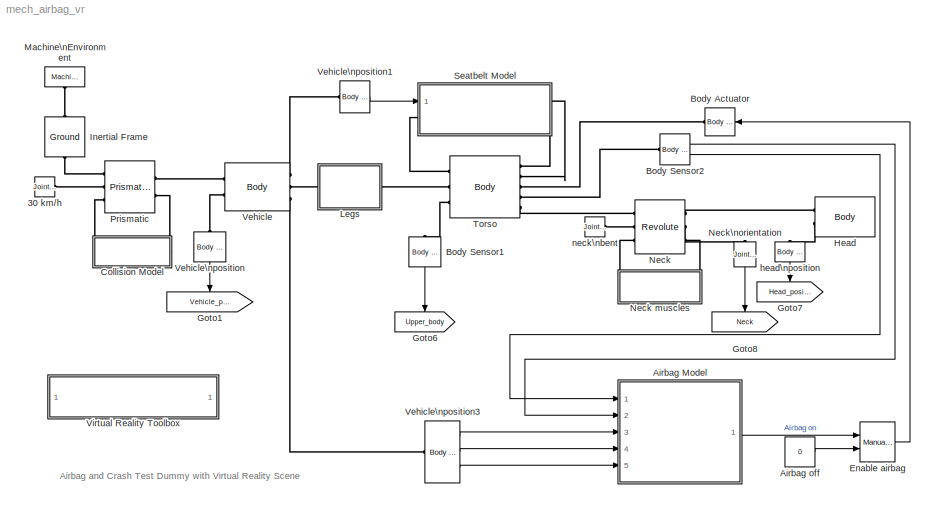
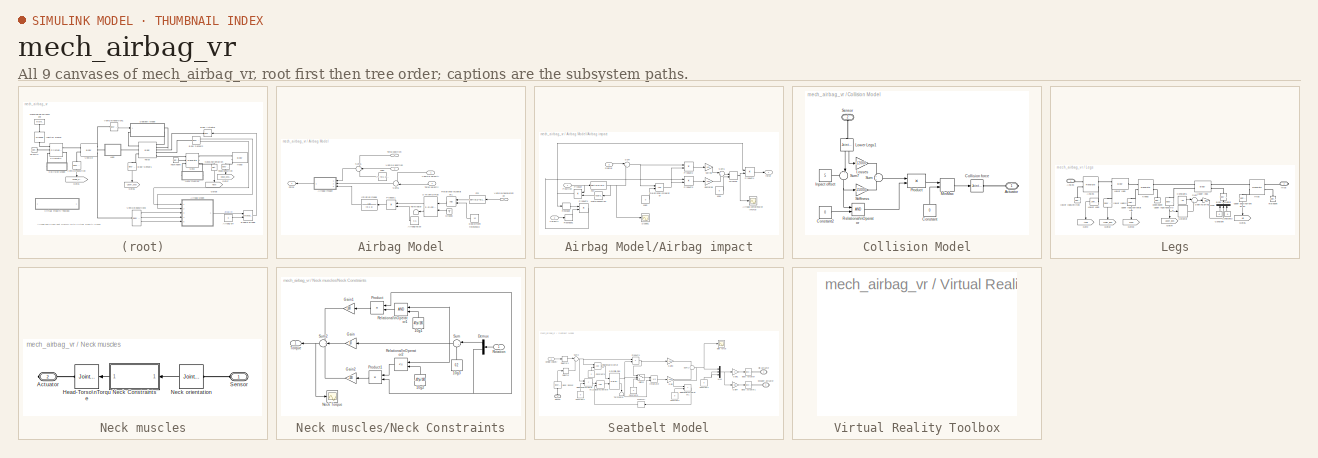
[diagram: thumbnail index - all 9 canvases of the model, root first then tree order]
MODEL mech_airbag_vr
KIND model
BLOCK [Reference] 30 km//h  REF=mblibv1/Sensors & \nActuators/Joint Initial Condition
  AngleUnits = deg
  ArcVelocityUnits = deg/s
  ClassName = InitialCondition
  CoordPosition = 0
  CoordPositionUnits = m
  DialogClass = InitialConditionBlock
  DialogController = MECH.DynMechDlgSource
  FunctionWithSeparateData = off
  InitialConditions = P1$true$0$m$deg$30/3.6$m/s$deg/s#P2$false$0$m$rad$0$m/s$rad/s#P3$false$0$m$rad$0$m/s$rad/s#R1$false$0$m$rad$0$m/s$rad/s#R2$false$0$m$rad$0$m/s$rad/s#R3$false$0$m$rad$0$m/s$rad/s#S$false$0$m$rad$0$m/s$rad/s
  P1PIC = 0
  P1VIC = 30/3.6
  P2PIC = 0
  P2VIC = 0
  P3PIC = 0
  P3VIC = 0
  PhysicalDomain = Mechanical
  Ports = [0, 0, 0, 0, 0, 0, 1]
  Primitive = P1
  R1PIC = 0
  R1VIC = 0
  R2PIC = 0
  R2VIC = 0
  R3PIC = 0
  R3VIC = 0
  RTWMemSecDataConstants = Inherit from model
  RTWMemSecDataInternal = Inherit from model
  RTWMemSecDataParameters = Inherit from model
  RTWMemSecFuncExecute = Inherit from model
  RTWMemSecFuncInitTerm = Inherit from model
  SPIC = 0
  SVIC = 0
  ShowPortLabels = FromPortIcon
  SourceBlock = mblibv1/Sensors & \nActuators/Joint Initial Condition
  SourceType = Joint Initial Condition
  SystemSampleTime = -1
  Velocity = 30/3.6
  VelocityUnits = m/s
BLOCK [SubSystem] Airbag Model
  FunctionWithSeparateData = off
  MaskHideContents = off
  MinAlgLoopOccurrences = off
  Opaque = off
  Ports = [5, 1]
  PropExecContextOutsideSubsystem = off
  RTWSystemCode = Auto
  RequestExecContextInheritance = off
BLOCK [Constant] Airbag Model/10g1
  OutDataType = sfix(16)
  OutScaling = 2^0
  Value = [-2.78+1.5 1.63-0.105 0 ]
BLOCK [SubSystem] Airbag Model/Airbag impact
  FunctionWithSeparateData = off
  MaskHideContents = off
  MinAlgLoopOccurrences = off
  Opaque = off
  Ports = [3, 1]
  PropExecContextOutsideSubsystem = off
  RTWSystemCode = Auto
  RequestExecContextInheritance = off
BLOCK [Constant] Airbag Model/Airbag impact/10g1
  OutDataType = sfix(16)
  OutScaling = 2^0
  Value = 0
BLOCK [Constant] Airbag Model/Airbag impact/10g2
  OutDataType = sfix(16)
  OutScaling = 2^0
  Value = 0
BLOCK [Scope] Airbag Model/Airbag impact/Airbag compressive\nforce
  DataFormat = StructureWithTime
  Floating = off
  NumInputPorts = 1
  Ports = [1]
  SampleTime = 0
  YMax = 1
  YMin = -1
BLOCK [Fcn] Airbag Model/Airbag impact/Fcn
  Expr = sqrt(u[1]*u[1] + u[2]*u[2] + u[3]*u[3])
BLOCK [Math] Airbag Model/Airbag impact/Math\nFunction
  Operator = reciprocal
  OutDataType = sfix(16)
  OutScaling = 2^0
  Ports = [1, 1]
BLOCK [MinMax] Airbag Model/Airbag impact/MinMax
  Function = max
  Inputs = 2
  OutDataType = sfix(16)
  OutScaling = 2^0
  Ports = [2, 1]
  ZeroCross = off
BLOCK [Inport] Airbag Model/Airbag impact/Position
  IconDisplay = Port number
  OutDataType = sfix(16)
  OutScaling = 2^0
BLOCK [Product] Airbag Model/Airbag impact/Product
  OutDataType = sfix(16)
  OutScaling = 2^0
  Ports = [2, 1]
  RndMeth = Floor
BLOCK [Product] Airbag Model/Airbag impact/Product1
  Multiplication = Matrix(*)
  OutDataType = sfix(16)
  OutScaling = 2^0
  Ports = [2, 1]
  RndMeth = Floor
BLOCK [Product] Airbag Model/Airbag impact/Product2
  OutDataType = sfix(16)
  OutScaling = 2^0
  Ports = [2, 1]
  RndMeth = Floor
BLOCK [Product] Airbag Model/Airbag impact/Product3
  OutDataType = sfix(16)
  OutScaling = 2^0
  Ports = [2, 1]
  RndMeth = Floor
BLOCK [Product] Airbag Model/Airbag impact/Product4
  OutDataType = sfix(16)
  OutScaling = 2^0
  Ports = [2, 1]
  RndMeth = Floor
BLOCK [Inport] Airbag Model/Airbag impact/Radius
  IconDisplay = Port number
  OutDataType = sfix(16)
  OutScaling = 2^0
  Port = 3
BLOCK [RelationalOperator] Airbag Model/Airbag impact/Relational\nOperator
  ZeroCross = off
BLOCK [Reshape] Airbag Model/Airbag impact/Reshape
  OutputDimensionality = Row vector (2-D)
BLOCK [Reshape] Airbag Model/Airbag impact/Reshape1
  OutputDimensionality = Column vector (2-D)
BLOCK [Scope] Airbag Model/Airbag impact/Scope1
  DataFormat = StructureWithTime
  Floating = off
  NumInputPorts = 1
  Ports = [1]
  SampleTime = 0
  SaveName = ScopeData4
  YMax = 1.75
  YMin = 0.25
BLOCK [Sum] Airbag Model/Airbag impact/Sum
  IconShape = round
  Inputs = |+-
  OutDataType = sfix(16)
  OutScaling = 2^0
  Ports = [2, 1]
BLOCK [Sum] Airbag Model/Airbag impact/Sum1
  IconShape = round
  OutDataType = sfix(16)
  OutScaling = 2^0
  Ports = [2, 1]
BLOCK [Inport] Airbag Model/Airbag impact/Velocity
  IconDisplay = Port number
  OutDataType = sfix(16)
  OutScaling = 2^0
  Port = 2
BLOCK [Gain] Airbag Model/Airbag impact/damping
  Gain = -2e3
  OutDataType = sfix(16)
  OutScaling = 2^0
  ParameterDataType = sfix(16)
  ParameterScaling = 2^0
BLOCK [Outport] Airbag Model/Airbag impact/force
  IconDisplay = Port number
  OutDataType = sfix(16)
  OutScaling = 2^0
BLOCK [Gain] Airbag Model/Airbag impact/spring
  Gain = 1e3
  OutDataType = sfix(16)
  OutScaling = 2^0
  ParameterDataType = sfix(16)
  ParameterScaling = 2^0
BLOCK [Constant] Airbag Model/Airbag\nsize
  OutDataType = sfix(16)
  OutScaling = 2^0
  Value = 0.5
BLOCK [Constant] Airbag Model/Deployment threshhold
  OutDataType = sfix(16)
  OutScaling = 2^0
  Value = 10
BLOCK [Fcn] Airbag Model/Fcn
  Expr = sqrt(u[1]*u[1] + u[2]*u[2] + u[3]*u[3])
BLOCK [Outport] Airbag Model/Force
  IconDisplay = Port number
  OutDataType = sfix(16)
  OutScaling = 2^0
BLOCK [Ground] Airbag Model/Ground
BLOCK [TransferFcn] Airbag Model/Inflation model
  Denominator = [0.1 1]
BLOCK [Product] Airbag Model/Product1
  OutDataType = sfix(16)
  OutScaling = 2^0
  Ports = [2, 1]
  RndMeth = Floor
BLOCK [RelationalOperator] Airbag Model/Relational\nOperator1
  ZeroCross = off
BLOCK [Reference] Airbag Model/S-R\nFlip-Flop  REF=simulink_extras/Flip Flops/S-R\nFlip-Flop
  FunctionWithSeparateData = off
  Ports = [2, 2]
  RTWMemSecDataConstants = Inherit from model
  RTWMemSecDataInternal = Inherit from model
  RTWMemSecDataParameters = Inherit from model
  RTWMemSecFuncExecute = Inherit from model
  RTWMemSecFuncInitTerm = Inherit from model
  ShowPortLabels = FromPortIcon
  SourceBlock = simulink_extras/Flip Flops/S-R\nFlip-Flop
  SourceType = SRFlipFlop
  SystemSampleTime = -1
  initial_condition = 0
BLOCK [Sum] Airbag Model/Sum5
  IconShape = round
  Inputs = +--
  OutDataType = sfix(16)
  OutScaling = 2^0
  Ports = [3, 1]
BLOCK [Sum] Airbag Model/Sum6
  IconShape = round
  Inputs = -+|
  OutDataType = sfix(16)
  OutScaling = 2^0
  Ports = [2, 1]
BLOCK [Terminator] Airbag Model/Terminator
BLOCK [Inport] Airbag Model/Torso position
  IconDisplay = Port number
  OutDataType = sfix(16)
  OutScaling = 2^0
  Port = 2
BLOCK [Inport] Airbag Model/Torso velocity
  IconDisplay = Port number
  OutDataType = sfix(16)
  OutScaling = 2^0
BLOCK [Inport] Airbag Model/Vehicle position
  IconDisplay = Port number
  OutDataType = sfix(16)
  OutScaling = 2^0
  Port = 3
BLOCK [Inport] Airbag Model/Vehicle velocity
  IconDisplay = Port number
  OutDataType = sfix(16)
  OutScaling = 2^0
  Port = 4
BLOCK [Inport] Airbag Model/Vehicle\nacceleration
  IconDisplay = Port number
  OutDataType = sfix(16)
  OutScaling = 2^0
  Port = 5
BLOCK [Constant] Airbag off
  OutDataType = sfix(16)
  OutScaling = 2^0
  Value = 0
BLOCK [Reference] Body Actuator  REF=mblibv1/Sensors & \nActuators/Body Actuator
  AccelerationUnits = m/s^2
  ActiveIO = on
  ActuationStyle = Force
  Angle = off
  AngleUnits = deg
  ArcAccelerationUnits = deg/s^2
  ArcVelocityUnits = deg/s
  ClassName = BodyActuatorForceTorque
  CoordPosition = on
  CoordPositionUnits = m
  DialogClass = MechanicalActuatorBlock
  DialogController = MECH.DynMechDlgSource
  Force = on
  ForceUnits = N
  FunctionWithSeparateData = off
  PhysicalDomain = Mechanical
  PortType = blob
  Ports = [1, 0, 0, 0, 0, 0, 1]
  RTWMemSecDataConstants = Inherit from model
  RTWMemSecDataInternal = Inherit from model
  RTWMemSecDataParameters = Inherit from model
  RTWMemSecFuncExecute = Inherit from model
  RTWMemSecFuncInitTerm = Inherit from model
  ReferenceFrame = Absolute (World)
  ShowPortLabels = FromPortIcon
  SourceBlock = mblibv1/Sensors & \nActuators/Body Actuator
  SourceType = Body Actuator
  SystemSampleTime = -1
  Torque = off
  TorqueUnits = N-m
  VelocityUnits = m/s
  Width = 3
BLOCK [Reference] Body Sensor1  REF=mblibv1/Sensors & \nActuators/Body Sensor
  Acceleration = off
  AccelerationUnits = m/s^2
  ActiveIO = on
  Angle = on
  AngleUnits = deg
  ArcAcceleration = off
  ArcAccelerationUnits = deg/s^2
  ArcVelocity = off
  ArcVelocityUnits = deg/s
  ClassName = BodySensor
  CoordPosition = on
  CoordPositionUnits = cm
  DialogClass = MechanicalSensorBlock
  DialogController = MECH.DynMechDlgSource
  FunctionWithSeparateData = off
  Muxed = on
  OutputVector = [ 3 ]
  PhysicalDomain = Mechanical
  PortType = blob
  Ports = [0, 1, 0, 0, 0, 1]
  Pose = off
  Quaternion = on
  QuaternionDDT = off
  QuaternionDT = off
  QuaternionUnits = off
  RTWMemSecDataConstants = Inherit from model
  RTWMemSecDataInternal = Inherit from model
  RTWMemSecDataParameters = Inherit from model
  RTWMemSecFuncExecute = Inherit from model
  RTWMemSecFuncInitTerm = Inherit from model
  ReferenceFrame = Absolute (World)
  ShowPortLabels = FromPortIcon
  SourceBlock = mblibv1/Sensors & \nActuators/Body Sensor
  SourceType = Body Sensor
  SystemSampleTime = -1
  Velocity = off
  VelocityUnits = m/s
  Width = 3
BLOCK [Reference] Body Sensor2  REF=mblibv1/Sensors & \nActuators/Body Sensor
  Acceleration = off
  AccelerationUnits = m/s^2
  ActiveIO = on
  Angle = on
  AngleUnits = deg
  ArcAcceleration = off
  ArcAccelerationUnits = deg/s^2
  ArcVelocity = off
  ArcVelocityUnits = deg/s
  ClassName = BodySensor
  CoordPosition = on
  CoordPositionUnits = m
  DialogClass = MechanicalSensorBlock
  DialogController = MECH.DynMechDlgSource
  FunctionWithSeparateData = off
  Muxed = off
  OutputVector = [ 3 3 ]
  PhysicalDomain = Mechanical
  PortType = blob
  Ports = [0, 2, 0, 0, 0, 1]
  Pose = off
  Quaternion = on
  QuaternionDDT = off
  QuaternionDT = off
  QuaternionUnits = off
  RTWMemSecDataConstants = Inherit from model
  RTWMemSecDataInternal = Inherit from model
  RTWMemSecDataParameters = Inherit from model
  RTWMemSecFuncExecute = Inherit from model
  RTWMemSecFuncInitTerm = Inherit from model
  ReferenceFrame = Absolute (World)
  ShowPortLabels = FromPortIcon
  SourceBlock = mblibv1/Sensors & \nActuators/Body Sensor
  SourceType = Body Sensor
  SystemSampleTime = -1
  Velocity = on
  VelocityUnits = m/s
  Width = 6
BLOCK [SubSystem] Collision Model
  FunctionWithSeparateData = off
  MaskHideContents = off
  MinAlgLoopOccurrences = off
  Opaque = off
  Ports = [0, 0, 0, 0, 0, 1, 1]
  PropExecContextOutsideSubsystem = off
  RTWSystemCode = Auto
  RequestExecContextInheritance = off
BLOCK [PMIOPort] Collision Model/Actuator
  Port = 1
  Side = Right
BLOCK [Reference] Collision Model/Collision force  REF=mblibv1/Sensors & \nActuators/Joint Actuator
  AccelerationUnits = m/s^2
  ActiveIO = on
  ActuationStyle = Force
  AngleUnits = deg
  ArcAccelerationUnits = deg/s^2
  ArcVelocityUnits = deg/s
  ClassName = JointActuator
  CoordPositionUnits = m
  DialogClass = MechanicalActuatorBlock
  DialogController = MECH.DynMechDlgSource
  ForceUnits = N
  FunctionWithSeparateData = off
  PhysicalDomain = Mechanical
  PortType = blob
  Ports = [1, 0, 0, 0, 0, 0, 1]
  Primitive = P1
  RTWMemSecDataConstants = Inherit from model
  RTWMemSecDataInternal = Inherit from model
  RTWMemSecDataParameters = Inherit from model
  RTWMemSecFuncExecute = Inherit from model
  RTWMemSecFuncInitTerm = Inherit from model
  ReferenceFrame = Absolute (INERTIAL)
  ShowPortLabels = FromPortIcon
  SourceBlock = mblibv1/Sensors & \nActuators/Joint Actuator
  SourceType = Joint Actuator
  SystemSampleTime = -1
  TorqueUnits = N-m
  VelocityUnits = m/s
  Width = 1
BLOCK [Constant] Collision Model/Constant
  OutDataType = sfix(16)
  OutScaling = 2^0
  Value = 0
BLOCK [Constant] Collision Model/Constant2
  OutDataType = sfix(16)
  OutScaling = 2^0
  Value = 0
BLOCK [Constant] Collision Model/Inpact offset
  OutDataType = sfix(16)
  OutScaling = 2^0
  Value = 5
BLOCK [Gain] Collision Model/Losses
  Gain = -12000
  OutDataType = sfix(16)
  OutScaling = 2^0
  ParameterDataType = sfix(16)
  ParameterScaling = 2^0
BLOCK [Reference] Collision Model/Lower Legs1  REF=mblibv1/Sensors & \nActuators/Joint Sensor
  Acceleration = off
  AccelerationUnits = m/s^2
  ActiveIO = on
  Angle = on
  AngleUnits = rad
  ArcAcceleration = off
  ArcAccelerationUnits = deg/s^2
  ArcVelocity = off
  ArcVelocityUnits = deg/s
  ClassName = JointSensor
  CoordPosition = on
  CoordPositionUnits = m
  DialogClass = MechanicalSensorBlock
  DialogController = MECH.DynMechDlgSource
  Force = off
  ForceUnits = N
  FunctionWithSeparateData = off
  Muxed = off
  OutputVector = [ 1 1 ]
  PhysicalDomain = Mechanical
  PortType = blob
  Ports = [0, 2, 0, 0, 0, 1]
  Pose = off
  Primitive = P1
  Quaternion = on
  QuaternionDDT = off
  QuaternionDT = off
  QuaternionUnits = off
  RTWMemSecDataConstants = Inherit from model
  RTWMemSecDataInternal = Inherit from model
  RTWMemSecDataParameters = Inherit from model
  RTWMemSecFuncExecute = Inherit from model
  RTWMemSecFuncInitTerm = Inherit from model
  ReactionForce = off
  ReactionForceUnits = N
  ReactionMoment = off
  ReactionMomentUnits = N-m
  ReactionReferenceFrame = Absolute (World)
  ReactionSensedSide = Base
  ReferenceFrame = Absolute (INERTIAL)
  ShowPortLabels = FromPortIcon
  SourceBlock = mblibv1/Sensors & \nActuators/Joint Sensor
  SourceType = Joint Sensor
  SystemSampleTime = -1
  Torque = off
  TorqueUnits = N-m
  Velocity = on
  VelocityUnits = m/s
  Width = 2
BLOCK [MinMax] Collision Model/MinMax
  Function = min
  Inputs = 2
  OutDataType = sfix(16)
  OutScaling = 2^0
  Ports = [2, 1]
  ZeroCross = off
BLOCK [Product] Collision Model/Product
  OutDataType = sfix(16)
  OutScaling = 2^0
  Ports = [2, 1]
  RndMeth = Floor
BLOCK [RelationalOperator] Collision Model/Relational\nOperator
  ZeroCross = off
BLOCK [PMIOPort] Collision Model/Sensor
  Port = 2
  Side = Left
BLOCK [Gain] Collision Model/Stiffness
  Gain = -15000
  OutDataType = sfix(16)
  OutScaling = 2^0
  ParameterDataType = sfix(16)
  ParameterScaling = 2^0
BLOCK [Sum] Collision Model/Sum
  IconShape = round
  OutDataType = sfix(16)
  OutScaling = 2^0
  Ports = [2, 1]
BLOCK [Sum] Collision Model/Sum7
  IconShape = round
  Inputs = -+|
  OutDataType = sfix(16)
  OutScaling = 2^0
  Ports = [2, 1]
BLOCK [Reference] Enable airbag  REF=simulink/Signal\nRouting/Manual Switch
  FunctionWithSeparateData = off
  Ports = [2, 1]
  RTWMemSecDataConstants = Inherit from model
  RTWMemSecDataInternal = Inherit from model
  RTWMemSecDataParameters = Inherit from model
  RTWMemSecFuncExecute = Inherit from model
  RTWMemSecFuncInitTerm = Inherit from model
  ShowPortLabels = FromPortIcon
  SourceBlock = simulink/Signal\nRouting/Manual Switch
  SourceType = Manual Switch
  SystemSampleTime = -1
  action = 0
  sw = 1
  varsize = off
BLOCK [Goto] Goto1
  GotoTag = Vehicle_position
  TagVisibility = global
BLOCK [Goto] Goto6
  GotoTag = Upper_body
  TagVisibility = global
BLOCK [Goto] Goto7
  GotoTag = Head_position
  TagVisibility = global
BLOCK [Goto] Goto8
  GotoTag = Neck
  TagVisibility = global
BLOCK [Reference] Head  REF=mblibv1/Bodies/Body
  AttachedToCS = 1
  BodyColor = [0.5 0.5 0.5]
  CG = Left$CG$[0 15 0]$CS1$CS1$cm$[0 0 0]$Euler X-Y-Z$deg$WORLD$true
  CGPos = [0 15 0]
  CGRot = [0 0 0]
  CS0Pos = []
  CS0Rot = []
  CS10Pos = []
  CS10Rot = []
  CS11Pos = []
  CS11Rot = []
  CS12Pos = []
  CS12Rot = []
  CS13Pos = []
  CS13Rot = []
  CS14Pos = []
  CS14Rot = []
  CS15Pos = []
  CS15Rot = []
  CS16Pos = []
  CS16Rot = []
  CS17Pos = []
  CS17Rot = []
  CS18Pos = []
  CS18Rot = []
  CS19Pos = []
  CS19Rot = []
  CS1Pos = [0 0 0]
  CS1Rot = [0 0 0]
  CS20Pos = []
  CS20Rot = []
  CS2Pos = []
  CS2Rot = []
  CS3Pos = []
  CS3Rot = []
  CS4Pos = []
  CS4Rot = []
  CS5Pos = []
  CS5Rot = []
  CS6Pos = []
  CS6Rot = []
  CS7Pos = []
  CS7Rot = []
  CS8Pos = []
  CS8Rot = []
  CS9Pos = []
  CS9Rot = []
  ClassName = Body
  Density = 1
  DensityUnits = kg/m^3
  DensityUse = false
  DialogClass = MechanicalBodyBlock
  DialogController = MECH.DynMechDlgSource
  GraphicsMode = 1
  GraphicsObj = []
  Inertia = (2/5)*3*[1.25 0 0;0 1 0;0 0 1]
  InertiaUnits = kg*m^2
  LConnTagsString = CS1|CG
  LeftPortType = workingframe
  Mass = 10
  MassUnits = kg
  PhysicalDomain = mechanical
  Ports = [0, 0, 0, 0, 0, 2]
  RightPortType = workingframe
  Shape = Cylinder
  ShapeDims = [1 1]
  ShapeUnits = m
  ShapeUse = false
  SourceBlock = mblibv1/Bodies/Body
  SourceType = Body
  SubClassName = Unknown
  WorkingFrames = Left$CS1$[0 0 0]$ADJOINING$ADJOINING$cm$[0 0 0]$Euler X-Y-Z$deg$WORLD$true
BLOCK [Reference] Inertial Frame  REF=mblibv1/Bodies/Ground
  ClassName = Ground
  CoordPosition = [0 0 0]
  CoordPositionUnits = m
  DialogClass = GroundBlock
  DialogController = MECH.DynMechDlgSource
  FunctionWithSeparateData = off
  LeftPortType = env
  MachineId = [0 0]
  PhysicalDomain = Mechanical
  Ports = [0, 0, 0, 0, 0, 1, 1]
  RTWMemSecDataConstants = Inherit from model
  RTWMemSecDataInternal = Inherit from model
  RTWMemSecDataParameters = Inherit from model
  RTWMemSecFuncExecute = Inherit from model
  RTWMemSecFuncInitTerm = Inherit from model
  RightPortType = workingframe
  ShowEnvPort = on
  ShowPortLabels = FromPortIcon
  SourceBlock = mblibv1/Bodies/Ground
  SourceType = Ground
  StateVectorMgrId = -1
  SystemSampleTime = -1
  UserData = DataTag0
  UserDataPersistent = on
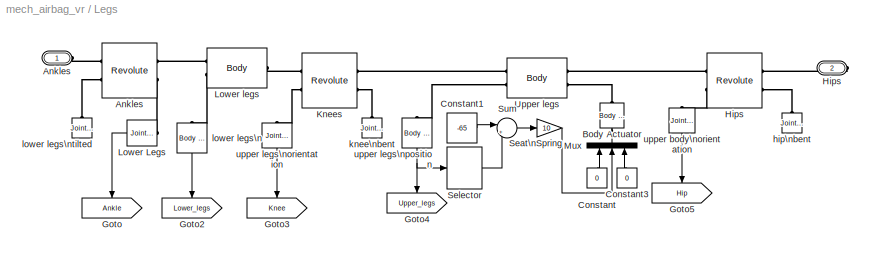
BLOCK [SubSystem] Legs
  FunctionWithSeparateData = off
  MaskHideContents = off
  MinAlgLoopOccurrences = off
  Opaque = off
  Ports = [0, 0, 0, 0, 0, 1, 1]
  PropExecContextOutsideSubsystem = off
  RTWSystemCode = Auto
  RequestExecContextInheritance = off
BLOCK [Reference] Legs/Ankles  REF=mblibv1/Joints/Revolute
  ClassName = Joint
  CutJoint = off
  DialogClass = JointBlock
  DialogController = MECH.DynMechDlgSource
  LConnTagsString = __newl0|SA1
  LeftPortType = blob
  MarkAsCut = off
  NumSAPorts = 2
  PhysicalDomain = mechanical
  Ports = [0, 0, 0, 0, 0, 2, 2]
  PrimitiveProps = R1$Base$[0 0 1]$revolute
  Primitives = revolute
  R1Axis = [0 0 1]
  RConnTagsString = __newr0|SA1
  RightPortType = blob
  SourceBlock = mblibv1/Joints/Revolute
  SourceType = Revolute
  SubClassName = Unknown
BLOCK [PMIOPort] Legs/Ankles  
  Port = 1
  Side = Left
BLOCK [Reference] Legs/Body Actuator  REF=mblibv1/Sensors & \nActuators/Body Actuator
  AccelerationUnits = m/s^2
  ActiveIO = on
  ActuationStyle = Force
  Angle = off
  AngleUnits = deg
  ArcAccelerationUnits = deg/s^2
  ArcVelocityUnits = deg/s
  ClassName = BodyActuatorForceTorque
  CoordPosition = on
  CoordPositionUnits = m
  DialogClass = MechanicalActuatorBlock
  DialogController = MECH.DynMechDlgSource
  Force = on
  ForceUnits = N
  FunctionWithSeparateData = off
  PhysicalDomain = Mechanical
  PortType = blob
  Ports = [1, 0, 0, 0, 0, 0, 1]
  RTWMemSecDataConstants = Inherit from model
  RTWMemSecDataInternal = Inherit from model
  RTWMemSecDataParameters = Inherit from model
  RTWMemSecFuncExecute = Inherit from model
  RTWMemSecFuncInitTerm = Inherit from model
  ReferenceFrame = Absolute (World)
  ShowPortLabels = FromPortIcon
  SourceBlock = mblibv1/Sensors & \nActuators/Body Actuator
  SourceType = Body Actuator
  SystemSampleTime = -1
  Torque = off
  TorqueUnits = N-m
  VelocityUnits = m/s
  Width = 3
BLOCK [Constant] Legs/Constant
  OutDataType = sfix(16)
  OutScaling = 2^0
  Value = 0
BLOCK [Constant] Legs/Constant1
  OutDataType = sfix(16)
  OutScaling = 2^0
  Value = -65
BLOCK [Constant] Legs/Constant3
  OutDataType = sfix(16)
  OutScaling = 2^0
  Value = 0
BLOCK [Goto] Legs/Goto
  GotoTag = Ankle
  TagVisibility = global
BLOCK [Goto] Legs/Goto2
  GotoTag = Lower_legs
  TagVisibility = global
BLOCK [Goto] Legs/Goto3
  GotoTag = Knee
  TagVisibility = global
BLOCK [Goto] Legs/Goto4
  GotoTag = Upper_legs
  TagVisibility = global
BLOCK [Goto] Legs/Goto5
  GotoTag = Hip
  TagVisibility = global
BLOCK [Reference] Legs/Hips  REF=mblibv1/Joints/Revolute
  ClassName = Joint
  CutJoint = off
  DialogClass = JointBlock
  DialogController = MECH.DynMechDlgSource
  LConnTagsString = __newl0|SA1
  LeftPortType = blob
  MarkAsCut = off
  NumSAPorts = 2
  PhysicalDomain = mechanical
  Ports = [0, 0, 0, 0, 0, 2, 2]
  PrimitiveProps = R1$Base$[0 0 1]$revolute
  Primitives = revolute
  R1Axis = [0 0 1]
  RConnTagsString = __newr0|SA1
  RightPortType = blob
  SourceBlock = mblibv1/Joints/Revolute
  SourceType = Revolute
  SubClassName = Unknown
BLOCK [PMIOPort] Legs/Hips 
  Port = 2
  Side = Right
BLOCK [Reference] Legs/Knees  REF=mblibv1/Joints/Revolute
  ClassName = Joint
  CutJoint = off
  DialogClass = JointBlock
  DialogController = MECH.DynMechDlgSource
  LConnTagsString = __newl0|SA1
  LeftPortType = blob
  MarkAsCut = off
  NumSAPorts = 2
  PhysicalDomain = mechanical
  Ports = [0, 0, 0, 0, 0, 2, 2]
  PrimitiveProps = R1$Base$[0 0 1]$revolute
  Primitives = revolute
  R1Axis = [0 0 1]
  RConnTagsString = __newr0|SA1
  RightPortType = blob
  SourceBlock = mblibv1/Joints/Revolute
  SourceType = Revolute
  SubClassName = Unknown
BLOCK [Reference] Legs/Lower Legs  REF=mblibv1/Sensors & \nActuators/Joint Sensor
  Acceleration = off
  AccelerationUnits = m/s^2
  ActiveIO = on
  Angle = on
  AngleUnits = rad
  ArcAcceleration = off
  ArcAccelerationUnits = deg/s^2
  ArcVelocity = off
  ArcVelocityUnits = deg/s
  ClassName = JointSensor
  CoordPosition = on
  CoordPositionUnits = m
  DialogClass = MechanicalSensorBlock
  DialogController = MECH.DynMechDlgSource
  Force = off
  ForceUnits = N
  FunctionWithSeparateData = off
  Muxed = on
  OutputVector = [ 1 ]
  PhysicalDomain = Mechanical
  PortType = blob
  Ports = [0, 1, 0, 0, 0, 1]
  Pose = off
  Primitive = R1
  Quaternion = on
  QuaternionDDT = off
  QuaternionDT = off
  QuaternionUnits = off
  RTWMemSecDataConstants = Inherit from model
  RTWMemSecDataInternal = Inherit from model
  RTWMemSecDataParameters = Inherit from model
  RTWMemSecFuncExecute = Inherit from model
  RTWMemSecFuncInitTerm = Inherit from model
  ReactionForce = off
  ReactionForceUnits = N
  ReactionMoment = off
  ReactionMomentUnits = N-m
  ReactionReferenceFrame = Absolute (World)
  ReactionSensedSide = Base
  ReferenceFrame = Absolute (INERTIAL)
  ShowPortLabels = FromPortIcon
  SourceBlock = mblibv1/Sensors & \nActuators/Joint Sensor
  SourceType = Joint Sensor
  SystemSampleTime = -1
  Torque = off
  TorqueUnits = N-m
  Velocity = off
  VelocityUnits = m/s
  Width = 1
BLOCK [Reference] Legs/Lower legs  REF=mblibv1/Bodies/Body
  AttachedToCS = 1
  BodyColor = [0.5 0.5 0.5]
  CG = Left$CG$[0 60 0]$CS1$CS1$cm$[0 0 0]$Euler X-Y-Z$deg$CS1$true
  CGPos = [0 60 0]
  CGRot = [0 0 0]
  CS0Pos = []
  CS0Rot = []
  CS10Pos = []
  CS10Rot = []
  CS11Pos = []
  CS11Rot = []
  CS12Pos = []
  CS12Rot = []
  CS13Pos = []
  CS13Rot = []
  CS14Pos = []
  CS14Rot = []
  CS15Pos = []
  CS15Rot = []
  CS16Pos = []
  CS16Rot = []
  CS17Pos = []
  CS17Rot = []
  CS18Pos = []
  CS18Rot = []
  CS19Pos = []
  CS19Rot = []
  CS1Pos = [0 0 0]
  CS1Rot = [0 0 0]
  CS20Pos = []
  CS20Rot = []
  CS2Pos = [0 120 0]
  CS2Rot = [0 0 0]
  CS3Pos = []
  CS3Rot = []
  CS4Pos = []
  CS4Rot = []
  CS5Pos = []
  CS5Rot = []
  CS6Pos = []
  CS6Rot = []
  CS7Pos = []
  CS7Rot = []
  CS8Pos = []
  CS8Rot = []
  CS9Pos = []
  CS9Rot = []
  ClassName = Body
  Density = 1
  DensityUnits = kg/m^3
  DensityUse = false
  DialogClass = MechanicalBodyBlock
  DialogController = MECH.DynMechDlgSource
  GraphicsMode = 1
  GraphicsObj = []
  Inertia = (2/5)*5*[0.25 0 0;0 0.04 0;0 0 0.25]
  InertiaUnits = kg*m^2
  LConnTagsString = CS1|CG
  LeftPortType = workingframe
  Mass = 5
  MassUnits = kg
  PhysicalDomain = mechanical
  Ports = [0, 0, 0, 0, 0, 2, 1]
  RConnTagsString = CS2
  RightPortType = workingframe
  Shape = Cylinder
  ShapeDims = [1 1]
  ShapeUnits = m
  ShapeUse = false
  SourceBlock = mblibv1/Bodies/Body
  SourceType = Body
  SubClassName = Unknown
  WorkingFrames = Left$CS1$[0 0 0]$ADJOINING$ADJOINING$cm$[0 0 0]$Euler X-Y-Z$deg$ADJOINING$true#Right$CS2$[0 120 0]$CS1$CS1$cm$[0 0 0]$Euler X-Y-Z$deg$CS1$true
BLOCK [Mux] Legs/Mux
  DisplayOption = bar
  Inputs = 3
  Ports = [3, 1]
BLOCK [Gain] Legs/Seat\nSpring
  Gain = 10
  OutDataType = sfix(16)
  OutScaling = 2^0
  ParameterDataType = sfix(16)
  ParameterScaling = 2^0
BLOCK [Selector] Legs/Selector
  IndexOptions = Index vector (dialog)
  Indices = 2
  InputPortWidth = 3
  OutputSizes = 1
  Ports = [1, 1]
BLOCK [Sum] Legs/Sum
  IconShape = round
  Inputs = |+-
  OutDataType = sfix(16)
  OutScaling = 2^0
  Ports = [2, 1]
BLOCK [Reference] Legs/Upper legs  REF=mblibv1/Bodies/Body
  AttachedToCS = 1
  BodyColor = [0.5 0.5 0.5]
  CG = Left$CG$[0 94 0]$CS1$CS1$cm$[0 0 0]$Euler X-Y-Z$deg$CS1$true
  CGPos = [0 94 0]
  CGRot = [0 0 0]
  CS0Pos = []
  CS0Rot = []
  CS10Pos = []
  CS10Rot = []
  CS11Pos = []
  CS11Rot = []
  CS12Pos = []
  CS12Rot = []
  CS13Pos = []
  CS13Rot = []
  CS14Pos = []
  CS14Rot = []
  CS15Pos = []
  CS15Rot = []
  CS16Pos = []
  CS16Rot = []
  CS17Pos = []
  CS17Rot = []
  CS18Pos = []
  CS18Rot = []
  CS19Pos = []
  CS19Rot = []
  CS1Pos = [0 0 0]
  CS1Rot = [0 0 0]
  CS20Pos = []
  CS20Rot = []
  CS2Pos = [0 188 0]
  CS2Rot = [0 0 0]
  CS3Pos = [0 188 0]
  CS3Rot = [0 0 0]
  CS4Pos = []
  CS4Rot = []
  CS5Pos = []
  CS5Rot = []
  CS6Pos = []
  CS6Rot = []
  CS7Pos = []
  CS7Rot = []
  CS8Pos = []
  CS8Rot = []
  CS9Pos = []
  CS9Rot = []
  ClassName = Body
  Density = 1
  DensityUnits = kg/m^3
  DensityUse = false
  DialogClass = MechanicalBodyBlock
  DialogController = MECH.DynMechDlgSource
  GraphicsMode = 1
  GraphicsObj = []
  Inertia = (2/5)*15*[0.5 0 0;0 0.08 0;0 0 0.5]
  InertiaUnits = kg*m^2
  LConnTagsString = CS1|CG
  LeftPortType = workingframe
  Mass = 15
  MassUnits = kg
  PhysicalDomain = mechanical
  Ports = [0, 0, 0, 0, 0, 2, 2]
  RConnTagsString = CS2|CS3
  RightPortType = workingframe
  Shape = Cylinder
  ShapeDims = [1 1]
  ShapeUnits = m
  ShapeUse = false
  SourceBlock = mblibv1/Bodies/Body
  SourceType = Body
  SubClassName = Unknown
  WorkingFrames = Left$CS1$[0 0 0]$ADJOINING$ADJOINING$cm$[0 0 0]$Euler X-Y-Z$deg$ADJOINING$true#Right$CS2$[0 188 0]$CS1$CS1$cm$[0 0 0]$Euler X-Y-Z$deg$CS1$true#Right$CS3$[0 188 0]$CS1$CS1$cm$[0 0 0]$Euler X-Y-Z$deg$CS1$true
BLOCK [Reference] Legs/hip\nbent  REF=mblibv1/Sensors & \nActuators/Joint Initial Condition
  AngleUnits = rad
  ArcVelocityUnits = deg/s
  ClassName = InitialCondition
  CoordPosition = -1.57
  CoordPositionUnits = m
  DialogClass = InitialConditionBlock
  DialogController = MECH.DynMechDlgSource
  FunctionWithSeparateData = off
  InitialConditions = P1$false$0$m$rad$0$m/s$rad/s#P2$false$0$m$rad$0$m/s$rad/s#P3$false$0$m$rad$0$m/s$rad/s#R1$true$-1.57$m$rad$0$m/s$deg/s#R2$false$0$m$rad$0$m/s$rad/s#R3$false$0$m$rad$0$m/s$rad/s#S$false$0$m$rad$0$m/s$rad/s
  P1PIC = 0
  P1VIC = 0
  P2PIC = 0
  P2VIC = 0
  P3PIC = 0
  P3VIC = 0
  PhysicalDomain = Mechanical
  Ports = [0, 0, 0, 0, 0, 0, 1]
  Primitive = R1
  R1PIC = -1.57
  R1VIC = 0
  R2PIC = 0
  R2VIC = 0
  R3PIC = 0
  R3VIC = 0
  RTWMemSecDataConstants = Inherit from model
  RTWMemSecDataInternal = Inherit from model
  RTWMemSecDataParameters = Inherit from model
  RTWMemSecFuncExecute = Inherit from model
  RTWMemSecFuncInitTerm = Inherit from model
  SPIC = 0
  SVIC = 0
  ShowPortLabels = FromPortIcon
  SourceBlock = mblibv1/Sensors & \nActuators/Joint Initial Condition
  SourceType = Joint Initial Condition
  SystemSampleTime = -1
  Velocity = 0
  VelocityUnits = m/s
BLOCK [Reference] Legs/knee\nbent  REF=mblibv1/Sensors & \nActuators/Joint Initial Condition
  AngleUnits = rad
  ArcVelocityUnits = deg/s
  ClassName = InitialCondition
  CoordPosition = 1.27
  CoordPositionUnits = m
  DialogClass = InitialConditionBlock
  DialogController = MECH.DynMechDlgSource
  FunctionWithSeparateData = off
  InitialConditions = P1$false$0$m$rad$0$m/s$rad/s#P2$false$0$m$rad$0$m/s$rad/s#P3$false$0$m$rad$0$m/s$rad/s#R1$true$1.27$m$rad$0$m/s$deg/s#R2$false$0$m$rad$0$m/s$rad/s#R3$false$0$m$rad$0$m/s$rad/s#S$false$0$m$rad$0$m/s$rad/s
  P1PIC = 0
  P1VIC = 0
  P2PIC = 0
  P2VIC = 0
  P3PIC = 0
  P3VIC = 0
  PhysicalDomain = Mechanical
  Ports = [0, 0, 0, 0, 0, 0, 1]
  Primitive = R1
  R1PIC = 1.27
  R1VIC = 0
  R2PIC = 0
  R2VIC = 0
  R3PIC = 0
  R3VIC = 0
  RTWMemSecDataConstants = Inherit from model
  RTWMemSecDataInternal = Inherit from model
  RTWMemSecDataParameters = Inherit from model
  RTWMemSecFuncExecute = Inherit from model
  RTWMemSecFuncInitTerm = Inherit from model
  SPIC = 0
  SVIC = 0
  ShowPortLabels = FromPortIcon
  SourceBlock = mblibv1/Sensors & \nActuators/Joint Initial Condition
  SourceType = Joint Initial Condition
  SystemSampleTime = -1
  Velocity = 0
  VelocityUnits = m/s
BLOCK [Reference] Legs/lower legs\n  REF=mblibv1/Sensors & \nActuators/Body Sensor
  Acceleration = off
  AccelerationUnits = m/s^2
  ActiveIO = on
  Angle = on
  AngleUnits = deg
  ArcAcceleration = off
  ArcAccelerationUnits = deg/s^2
  ArcVelocity = off
  ArcVelocityUnits = deg/s
  ClassName = BodySensor
  CoordPosition = on
  CoordPositionUnits = cm
  DialogClass = MechanicalSensorBlock
  DialogController = MECH.DynMechDlgSource
  FunctionWithSeparateData = off
  Muxed = on
  OutputVector = [ 3 ]
  PhysicalDomain = Mechanical
  PortType = blob
  Ports = [0, 1, 0, 0, 0, 1]
  Pose = off
  Quaternion = on
  QuaternionDDT = off
  QuaternionDT = off
  QuaternionUnits = off
  RTWMemSecDataConstants = Inherit from model
  RTWMemSecDataInternal = Inherit from model
  RTWMemSecDataParameters = Inherit from model
  RTWMemSecFuncExecute = Inherit from model
  RTWMemSecFuncInitTerm = Inherit from model
  ReferenceFrame = Absolute (World)
  ShowPortLabels = FromPortIcon
  SourceBlock = mblibv1/Sensors & \nActuators/Body Sensor
  SourceType = Body Sensor
  SystemSampleTime = -1
  Velocity = off
  VelocityUnits = m/s
  Width = 3
BLOCK [Reference] Legs/lower legs\ntilted  REF=mblibv1/Sensors & \nActuators/Joint Initial Condition
  AngleUnits = rad
  ArcVelocityUnits = deg/s
  ClassName = InitialCondition
  CoordPosition = 0.5
  CoordPositionUnits = m
  DialogClass = InitialConditionBlock
  DialogController = MECH.DynMechDlgSource
  FunctionWithSeparateData = off
  InitialConditions = P1$false$0$m$rad$0$m/s$rad/s#P2$false$0$m$rad$0$m/s$rad/s#P3$false$0$m$rad$0$m/s$rad/s#R1$true$0.5$m$rad$0$m/s$deg/s#R2$false$0$m$rad$0$m/s$rad/s#R3$false$0$m$rad$0$m/s$rad/s#S$false$0$m$rad$0$m/s$rad/s
  P1PIC = 0
  P1VIC = 0
  P2PIC = 0
  P2VIC = 0
  P3PIC = 0
  P3VIC = 0
  PhysicalDomain = Mechanical
  Ports = [0, 0, 0, 0, 0, 0, 1]
  Primitive = R1
  R1PIC = 0.5
  R1VIC = 0
  R2PIC = 0
  R2VIC = 0
  R3PIC = 0
  R3VIC = 0
  RTWMemSecDataConstants = Inherit from model
  RTWMemSecDataInternal = Inherit from model
  RTWMemSecDataParameters = Inherit from model
  RTWMemSecFuncExecute = Inherit from model
  RTWMemSecFuncInitTerm = Inherit from model
  SPIC = 0
  SVIC = 0
  ShowPortLabels = FromPortIcon
  SourceBlock = mblibv1/Sensors & \nActuators/Joint Initial Condition
  SourceType = Joint Initial Condition
  SystemSampleTime = -1
  Velocity = 0
  VelocityUnits = m/s
BLOCK [Reference] Legs/upper body\norientation  REF=mblibv1/Sensors & \nActuators/Joint Sensor
  Acceleration = off
  AccelerationUnits = m/s^2
  ActiveIO = on
  Angle = on
  AngleUnits = rad
  ArcAcceleration = off
  ArcAccelerationUnits = deg/s^2
  ArcVelocity = off
  ArcVelocityUnits = deg/s
  ClassName = JointSensor
  CoordPosition = on
  CoordPositionUnits = m
  DialogClass = MechanicalSensorBlock
  DialogController = MECH.DynMechDlgSource
  Force = off
  ForceUnits = N
  FunctionWithSeparateData = off
  Muxed = on
  OutputVector = [ 1 ]
  PhysicalDomain = Mechanical
  PortType = blob
  Ports = [0, 1, 0, 0, 0, 1]
  Pose = off
  Primitive = R1
  Quaternion = on
  QuaternionDDT = off
  QuaternionDT = off
  QuaternionUnits = off
  RTWMemSecDataConstants = Inherit from model
  RTWMemSecDataInternal = Inherit from model
  RTWMemSecDataParameters = Inherit from model
  RTWMemSecFuncExecute = Inherit from model
  RTWMemSecFuncInitTerm = Inherit from model
  ReactionForce = off
  ReactionForceUnits = N
  ReactionMoment = off
  ReactionMomentUnits = N-m
  ReactionReferenceFrame = Absolute (World)
  ReactionSensedSide = Base
  ReferenceFrame = Absolute (INERTIAL)
  ShowPortLabels = FromPortIcon
  SourceBlock = mblibv1/Sensors & \nActuators/Joint Sensor
  SourceType = Joint Sensor
  SystemSampleTime = -1
  Torque = off
  TorqueUnits = N-m
  Velocity = off
  VelocityUnits = m/s
  Width = 1
BLOCK [Reference] Legs/upper legs\norientation  REF=mblibv1/Sensors & \nActuators/Joint Sensor
  Acceleration = off
  AccelerationUnits = m/s^2
  ActiveIO = on
  Angle = on
  AngleUnits = rad
  ArcAcceleration = off
  ArcAccelerationUnits = deg/s^2
  ArcVelocity = off
  ArcVelocityUnits = deg/s
  ClassName = JointSensor
  CoordPosition = on
  CoordPositionUnits = m
  DialogClass = MechanicalSensorBlock
  DialogController = MECH.DynMechDlgSource
  Force = off
  ForceUnits = N
  FunctionWithSeparateData = off
  Muxed = on
  OutputVector = [ 1 ]
  PhysicalDomain = Mechanical
  PortType = blob
  Ports = [0, 1, 0, 0, 0, 1]
  Pose = off
  Primitive = R1
  Quaternion = on
  QuaternionDDT = off
  QuaternionDT = off
  QuaternionUnits = off
  RTWMemSecDataConstants = Inherit from model
  RTWMemSecDataInternal = Inherit from model
  RTWMemSecDataParameters = Inherit from model
  RTWMemSecFuncExecute = Inherit from model
  RTWMemSecFuncInitTerm = Inherit from model
  ReactionForce = off
  ReactionForceUnits = N
  ReactionMoment = off
  ReactionMomentUnits = N-m
  ReactionReferenceFrame = Absolute (World)
  ReactionSensedSide = Base
  ReferenceFrame = Absolute (INERTIAL)
  ShowPortLabels = FromPortIcon
  SourceBlock = mblibv1/Sensors & \nActuators/Joint Sensor
  SourceType = Joint Sensor
  SystemSampleTime = -1
  Torque = off
  TorqueUnits = N-m
  Velocity = off
  VelocityUnits = m/s
  Width = 1
BLOCK [Reference] Legs/upper legs\nposition  REF=mblibv1/Sensors & \nActuators/Body Sensor
  Acceleration = off
  AccelerationUnits = m/s^2
  ActiveIO = on
  Angle = on
  AngleUnits = deg
  ArcAcceleration = off
  ArcAccelerationUnits = deg/s^2
  ArcVelocity = off
  ArcVelocityUnits = deg/s
  ClassName = BodySensor
  CoordPosition = on
  CoordPositionUnits = cm
  DialogClass = MechanicalSensorBlock
  DialogController = MECH.DynMechDlgSource
  FunctionWithSeparateData = off
  Muxed = on
  OutputVector = [ 3 ]
  PhysicalDomain = Mechanical
  PortType = blob
  Ports = [0, 1, 0, 0, 0, 1]
  Pose = off
  Quaternion = on
  QuaternionDDT = off
  QuaternionDT = off
  QuaternionUnits = off
  RTWMemSecDataConstants = Inherit from model
  RTWMemSecDataInternal = Inherit from model
  RTWMemSecDataParameters = Inherit from model
  RTWMemSecFuncExecute = Inherit from model
  RTWMemSecFuncInitTerm = Inherit from model
  ReferenceFrame = Absolute (World)
  ShowPortLabels = FromPortIcon
  SourceBlock = mblibv1/Sensors & \nActuators/Body Sensor
  SourceType = Body Sensor
  SystemSampleTime = -1
  Velocity = off
  VelocityUnits = m/s
  Width = 3
BLOCK [Reference] Machine\nEnvironment  REF=mblibv1/Bodies/Machine\nEnvironment
  AnalysisType = Forward dynamics
  AngularAssemblyTolerance = 1e-3
  AngularAssemblyToleranceUnits = rad
  ClassName = Environment
  ConstraintAbsTolerance = 1e-4
  ConstraintRelTolerance = 1e-4
  ConstraintSolverType = Stabilizing
  DialogController = MECH.DialogSource
  DialogTemplateClass = MECH.MachineEnvironment
  Dimensionality = 3D Only
  FunctionWithSeparateData = off
  Gravity = [0 0 0]
  GravityAsSignal = off
  GravityUnits = m/s^2
  LinearAssemblyTolerance = 1e-3
  LinearAssemblyToleranceUnits = m
  PerturbationSize = 1e-3
  PhysicalDomain = Mechanical
  PortType = env
  Ports = [0, 0, 0, 0, 0, 0, 1]
  RTWMemSecDataConstants = Inherit from model
  RTWMemSecDataInternal = Inherit from model
  RTWMemSecDataParameters = Inherit from model
  RTWMemSecFuncExecute = Inherit from model
  RTWMemSecFuncInitTerm = Inherit from model
  RedundancyAnalysisTolerance = 1e-014
  RedundancyAnalysisToleranceType = Automatically select tolerance
  ShowPortLabels = FromPortIcon
  SourceBlock = mblibv1/Bodies/Machine\nEnvironment
  SourceType = Machine Environment
  StatePerturbationType = Adaptive
  SyncWhenCopied = off
  SystemSampleTime = -1
  Tag = Factory ground
  UseRobustSingularityHandling = off
  VisualizeMachine = on
BLOCK [Reference] Neck  REF=mblibv1/Joints/Revolute
  ClassName = Joint
  CutJoint = off
  DialogClass = JointBlock
  DialogController = MECH.DynMechDlgSource
  LConnTagsString = __newl0|SA1|SA2
  LeftPortType = blob
  MarkAsCut = off
  NumSAPorts = 4
  PhysicalDomain = mechanical
  Ports = [0, 0, 0, 0, 0, 3, 3]
  PrimitiveProps = R1$Base$[0 0 1]$revolute
  Primitives = revolute
  R1Axis = [0 0 1]
  RConnTagsString = __newr0|SA1|SA2
  RightPortType = blob
  SourceBlock = mblibv1/Joints/Revolute
  SourceType = Revolute
  SubClassName = Unknown
BLOCK [SubSystem] Neck muscles
  FunctionWithSeparateData = off
  MaskHideContents = off
  MinAlgLoopOccurrences = off
  Opaque = off
  Ports = [0, 0, 0, 0, 0, 1, 1]
  PropExecContextOutsideSubsystem = off
  RTWSystemCode = Auto
  RequestExecContextInheritance = off
BLOCK [PMIOPort] Neck muscles/Actuator
  Port = 2
  Side = Right
BLOCK [Reference] Neck muscles/Head-Torso\nTorque  REF=mblibv1/Sensors & \nActuators/Joint Actuator
  AccelerationUnits = m/s^2
  ActiveIO = on
  ActuationStyle = Force
  AngleUnits = deg
  ArcAccelerationUnits = deg/s^2
  ArcVelocityUnits = deg/s
  ClassName = JointActuator
  CoordPositionUnits = m
  DialogClass = MechanicalActuatorBlock
  DialogController = MECH.DynMechDlgSource
  ForceUnits = N
  FunctionWithSeparateData = off
  PhysicalDomain = Mechanical
  PortType = blob
  Ports = [1, 0, 0, 0, 0, 0, 1]
  Primitive = R1
  RTWMemSecDataConstants = Inherit from model
  RTWMemSecDataInternal = Inherit from model
  RTWMemSecDataParameters = Inherit from model
  RTWMemSecFuncExecute = Inherit from model
  RTWMemSecFuncInitTerm = Inherit from model
  ReferenceFrame = Absolute (INERTIAL)
  ShowPortLabels = FromPortIcon
  SourceBlock = mblibv1/Sensors & \nActuators/Joint Actuator
  SourceType = Joint Actuator
  SystemSampleTime = -1
  TorqueUnits = N-m
  VelocityUnits = m/s
  Width = 1
BLOCK [SubSystem] Neck muscles/Neck Constraints
  FunctionWithSeparateData = off
  MaskHideContents = off
  MinAlgLoopOccurrences = off
  Opaque = off
  Ports = [1, 1]
  PropExecContextOutsideSubsystem = off
  RTWSystemCode = Auto
  RequestExecContextInheritance = off
BLOCK [Constant] Neck muscles/Neck Constraints/10g1
  OutDataType = sfix(16)
  OutScaling = 2^0
  Value = 40*pi/180
BLOCK [Constant] Neck muscles/Neck Constraints/10g2
  OutDataType = sfix(16)
  OutScaling = 2^0
  Value = -40*pi/180
BLOCK [Constant] Neck muscles/Neck Constraints/10g3
  OutDataType = sfix(16)
  OutScaling = 2^0
  Value = 0.2
BLOCK [Demux] Neck muscles/Neck Constraints/Demux
  Outputs = 2
  Ports = [1, 2]
BLOCK [Gain] Neck muscles/Neck Constraints/Gain
  Gain = 10
  OutDataType = sfix(16)
  OutScaling = 2^0
  ParameterDataType = sfix(16)
  ParameterScaling = 2^0
BLOCK [Gain] Neck muscles/Neck Constraints/Gain1
  Gain = -100
  OutDataType = sfix(16)
  OutScaling = 2^0
  ParameterDataType = sfix(16)
  ParameterScaling = 2^0
BLOCK [Gain] Neck muscles/Neck Constraints/Gain2
  Gain = -100
  OutDataType = sfix(16)
  OutScaling = 2^0
  ParameterDataType = sfix(16)
  ParameterScaling = 2^0
BLOCK [Scope] Neck muscles/Neck Constraints/Neck Torque
  DataFormat = StructureWithTime
  Floating = off
  NumInputPorts = 1
  Ports = [1]
  SampleTime = 0
  SaveName = ScopeData2
  TimeRange = 1
  YMax = 2000
  YMin = -500
BLOCK [Product] Neck muscles/Neck Constraints/Product
  OutDataType = sfix(16)
  OutScaling = 2^0
  Ports = [2, 1]
  RndMeth = Floor
BLOCK [Product] Neck muscles/Neck Constraints/Product1
  OutDataType = sfix(16)
  OutScaling = 2^0
  Ports = [2, 1]
  RndMeth = Floor
BLOCK [RelationalOperator] Neck muscles/Neck Constraints/Relational\nOperator1
  ZeroCross = off
BLOCK [RelationalOperator] Neck muscles/Neck Constraints/Relational\nOperator2
  Operator = <=
  ZeroCross = off
BLOCK [Inport] Neck muscles/Neck Constraints/Rotation
  IconDisplay = Port number
  OutDataType = sfix(16)
  OutScaling = 2^0
BLOCK [Sum] Neck muscles/Neck Constraints/Sum
  IconShape = round
  Inputs = |++
  OutDataType = sfix(16)
  OutScaling = 2^0
  Ports = [2, 1]
BLOCK [Sum] Neck muscles/Neck Constraints/Sum2
  IconShape = round
  Inputs = +++
  OutDataType = sfix(16)
  OutScaling = 2^0
  Ports = [3, 1]
BLOCK [Outport] Neck muscles/Neck Constraints/Torque
  IconDisplay = Port number
  OutDataType = sfix(16)
  OutScaling = 2^0
BLOCK [Reference] Neck muscles/Neck orientation  REF=mblibv1/Sensors & \nActuators/Joint Sensor
  Acceleration = off
  AccelerationUnits = m/s^2
  ActiveIO = on
  Angle = on
  AngleUnits = rad
  ArcAcceleration = off
  ArcAccelerationUnits = deg/s^2
  ArcVelocity = on
  ArcVelocityUnits = rad/s
  ClassName = JointSensor
  CoordPosition = on
  CoordPositionUnits = m
  DialogClass = MechanicalSensorBlock
  DialogController = MECH.DynMechDlgSource
  Force = off
  ForceUnits = N
  FunctionWithSeparateData = off
  Muxed = on
  OutputVector = [ 1 1 ]
  PhysicalDomain = Mechanical
  PortType = blob
  Ports = [0, 1, 0, 0, 0, 1]
  Pose = off
  Primitive = R1
  Quaternion = on
  QuaternionDDT = off
  QuaternionDT = off
  QuaternionUnits = off
  RTWMemSecDataConstants = Inherit from model
  RTWMemSecDataInternal = Inherit from model
  RTWMemSecDataParameters = Inherit from model
  RTWMemSecFuncExecute = Inherit from model
  RTWMemSecFuncInitTerm = Inherit from model
  ReactionForce = off
  ReactionForceUnits = N
  ReactionMoment = off
  ReactionMomentUnits = N-m
  ReactionReferenceFrame = Absolute (World)
  ReactionSensedSide = Base
  ReferenceFrame = Absolute (INERTIAL)
  ShowPortLabels = FromPortIcon
  SourceBlock = mblibv1/Sensors & \nActuators/Joint Sensor
  SourceType = Joint Sensor
  SystemSampleTime = -1
  Torque = off
  TorqueUnits = N-m
  Velocity = off
  VelocityUnits = m/s
  Width = 2
BLOCK [PMIOPort] Neck muscles/Sensor
  Port = 1
  Side = Left
BLOCK [Reference] Neck\norientation  REF=mblibv1/Sensors & \nActuators/Joint Sensor
  Acceleration = off
  AccelerationUnits = m/s^2
  ActiveIO = on
  Angle = on
  AngleUnits = rad
  ArcAcceleration = off
  ArcAccelerationUnits = deg/s^2
  ArcVelocity = off
  ArcVelocityUnits = deg/s
  ClassName = JointSensor
  CoordPosition = on
  CoordPositionUnits = m
  DialogClass = MechanicalSensorBlock
  DialogController = MECH.DynMechDlgSource
  Force = off
  ForceUnits = N
  FunctionWithSeparateData = off
  Muxed = on
  OutputVector = [ 1 ]
  PhysicalDomain = Mechanical
  PortType = blob
  Ports = [0, 1, 0, 0, 0, 1]
  Pose = off
  Primitive = R1
  Quaternion = on
  QuaternionDDT = off
  QuaternionDT = off
  QuaternionUnits = off
  RTWMemSecDataConstants = Inherit from model
  RTWMemSecDataInternal = Inherit from model
  RTWMemSecDataParameters = Inherit from model
  RTWMemSecFuncExecute = Inherit from model
  RTWMemSecFuncInitTerm = Inherit from model
  ReactionForce = off
  ReactionForceUnits = N
  ReactionMoment = off
  ReactionMomentUnits = N-m
  ReactionReferenceFrame = Absolute (World)
  ReactionSensedSide = Base
  ReferenceFrame = Absolute (INERTIAL)
  ShowPortLabels = FromPortIcon
  SourceBlock = mblibv1/Sensors & \nActuators/Joint Sensor
  SourceType = Joint Sensor
  SystemSampleTime = -1
  Torque = off
  TorqueUnits = N-m
  Velocity = off
  VelocityUnits = m/s
  Width = 1
BLOCK [Reference] Prismatic  REF=mblibv1/Joints/Prismatic
  ClassName = Joint
  CutJoint = off
  DialogClass = JointBlock
  DialogController = MECH.DynMechDlgSource
  LConnTagsString = __newl0|SA1|SA2
  LeftPortType = blob
  MarkAsCut = off
  NumSAPorts = 3
  P1Axis = [1 0 0]
  PhysicalDomain = mechanical
  Ports = [0, 0, 0, 0, 0, 3, 2]
  PrimitiveProps = P1$WORLD$[1 0 0]$prismatic
  Primitives = prismatic
  RConnTagsString = __newr0|SA1
  RightPortType = blob
  SourceBlock = mblibv1/Joints/Prismatic
  SourceType = Prismatic
  SubClassName = Unknown
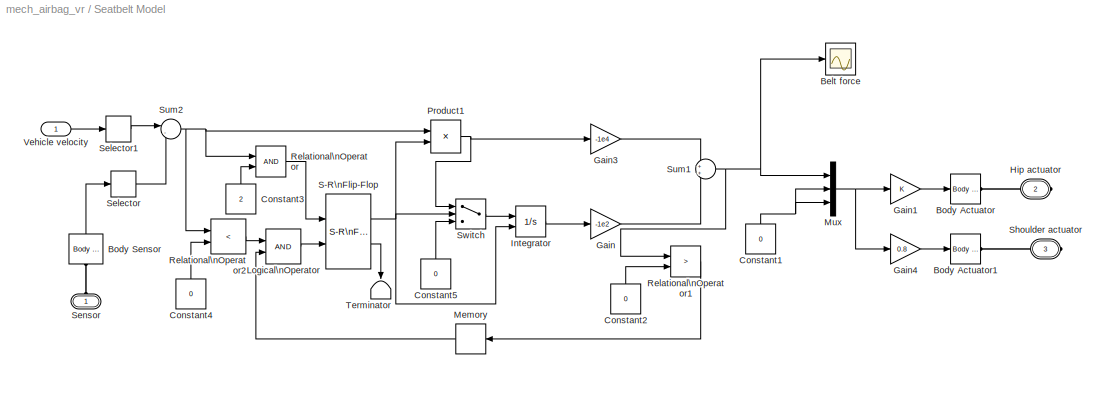
BLOCK [SubSystem] Seatbelt Model
  FunctionWithSeparateData = off
  MaskHideContents = off
  MinAlgLoopOccurrences = off
  Opaque = off
  Ports = [1, 0, 0, 0, 0, 1, 2]
  PropExecContextOutsideSubsystem = off
  RTWSystemCode = Auto
  RequestExecContextInheritance = off
BLOCK [Scope] Seatbelt Model/Belt force
  DataFormat = StructureWithTime
  Floating = off
  NumInputPorts = 1
  Ports = [1]
  SampleTime = 0
  SaveName = ScopeData1
  TimeRange = 1
  YMax = 5000
  YMin = -25000
  ZoomMode = yonly
BLOCK [Reference] Seatbelt Model/Body Actuator  REF=mblibv1/Sensors & \nActuators/Body Actuator
  AccelerationUnits = m/s^2
  ActiveIO = on
  ActuationStyle = Force
  Angle = off
  AngleUnits = deg
  ArcAccelerationUnits = deg/s^2
  ArcVelocityUnits = deg/s
  ClassName = BodyActuatorForceTorque
  CoordPosition = on
  CoordPositionUnits = m
  DialogClass = MechanicalActuatorBlock
  DialogController = MECH.DynMechDlgSource
  Force = on
  ForceUnits = N
  FunctionWithSeparateData = off
  PhysicalDomain = Mechanical
  PortType = blob
  Ports = [1, 0, 0, 0, 0, 0, 1]
  RTWMemSecDataConstants = Inherit from model
  RTWMemSecDataInternal = Inherit from model
  RTWMemSecDataParameters = Inherit from model
  RTWMemSecFuncExecute = Inherit from model
  RTWMemSecFuncInitTerm = Inherit from model
  ReferenceFrame = Local (Body CS)
  ShowPortLabels = FromPortIcon
  SourceBlock = mblibv1/Sensors & \nActuators/Body Actuator
  SourceType = Body Actuator
  SystemSampleTime = -1
  Torque = off
  TorqueUnits = N-m
  VelocityUnits = m/s
  Width = 3
BLOCK [Reference] Seatbelt Model/Body Actuator1  REF=mblibv1/Sensors & \nActuators/Body Actuator
  AccelerationUnits = m/s^2
  ActiveIO = on
  ActuationStyle = Force
  Angle = off
  AngleUnits = deg
  ArcAccelerationUnits = deg/s^2
  ArcVelocityUnits = deg/s
  ClassName = BodyActuatorForceTorque
  CoordPosition = on
  CoordPositionUnits = m
  DialogClass = MechanicalActuatorBlock
  DialogController = MECH.DynMechDlgSource
  Force = on
  ForceUnits = N
  FunctionWithSeparateData = off
  PhysicalDomain = Mechanical
  PortType = blob
  Ports = [1, 0, 0, 0, 0, 0, 1]
  RTWMemSecDataConstants = Inherit from model
  RTWMemSecDataInternal = Inherit from model
  RTWMemSecDataParameters = Inherit from model
  RTWMemSecFuncExecute = Inherit from model
  RTWMemSecFuncInitTerm = Inherit from model
  ReferenceFrame = Absolute (World)
  ShowPortLabels = FromPortIcon
  SourceBlock = mblibv1/Sensors & \nActuators/Body Actuator
  SourceType = Body Actuator
  SystemSampleTime = -1
  Torque = off
  TorqueUnits = N-m
  VelocityUnits = m/s
  Width = 3
BLOCK [Reference] Seatbelt Model/Body Sensor  REF=mblibv1/Sensors & \nActuators/Body Sensor
  Acceleration = off
  AccelerationUnits = m/s^2
  ActiveIO = on
  Angle = on
  AngleUnits = deg
  ArcAcceleration = off
  ArcAccelerationUnits = deg/s^2
  ArcVelocity = off
  ArcVelocityUnits = deg/s
  ClassName = BodySensor
  CoordPosition = off
  CoordPositionUnits = cm
  DialogClass = MechanicalSensorBlock
  DialogController = MECH.DynMechDlgSource
  FunctionWithSeparateData = off
  Muxed = off
  OutputVector = [ 3 ]
  PhysicalDomain = Mechanical
  PortType = blob
  Ports = [0, 1, 0, 0, 0, 1]
  Pose = off
  Quaternion = on
  QuaternionDDT = off
  QuaternionDT = off
  QuaternionUnits = off
  RTWMemSecDataConstants = Inherit from model
  RTWMemSecDataInternal = Inherit from model
  RTWMemSecDataParameters = Inherit from model
  RTWMemSecFuncExecute = Inherit from model
  RTWMemSecFuncInitTerm = Inherit from model
  ReferenceFrame = Absolute (World)
  ShowPortLabels = FromPortIcon
  SourceBlock = mblibv1/Sensors & \nActuators/Body Sensor
  SourceType = Body Sensor
  SystemSampleTime = -1
  Velocity = on
  VelocityUnits = m/s
  Width = 3
BLOCK [Constant] Seatbelt Model/Constant1
  OutDataType = sfix(16)
  OutScaling = 2^0
  Value = 0
BLOCK [Constant] Seatbelt Model/Constant2
  OutDataType = sfix(16)
  OutScaling = 2^0
  Value = 0
BLOCK [Constant] Seatbelt Model/Constant3
  OutDataType = sfix(16)
  OutScaling = 2^0
  Value = 2
BLOCK [Constant] Seatbelt Model/Constant4
  OutDataType = sfix(16)
  OutScaling = 2^0
  Value = 0
BLOCK [Constant] Seatbelt Model/Constant5
  OutDataType = sfix(16)
  OutScaling = 2^0
  Value = 0
BLOCK [Gain] Seatbelt Model/Gain
  Gain = -1e2
  OutDataType = sfix(16)
  OutScaling = 2^0
  ParameterDataType = sfix(16)
  ParameterScaling = 2^0
BLOCK [Gain] Seatbelt Model/Gain1
  OutDataType = sfix(16)
  OutScaling = 2^0
  ParameterDataType = sfix(16)
  ParameterScaling = 2^0
BLOCK [Gain] Seatbelt Model/Gain3
  Gain = -1e4
  OutDataType = sfix(16)
  OutScaling = 2^0
  ParameterDataType = sfix(16)
  ParameterScaling = 2^0
BLOCK [Gain] Seatbelt Model/Gain4
  Gain = 0.8
  OutDataType = sfix(16)
  OutScaling = 2^0
  ParameterDataType = sfix(16)
  ParameterScaling = 2^0
BLOCK [PMIOPort] Seatbelt Model/Hip actuator
  Port = 2
  Side = Right
BLOCK [Integrator] Seatbelt Model/Integrator
  AbsoluteTolerance = 1e-8
  ExternalReset = either
  Ports = [2, 1]
  ZeroCross = off
BLOCK [Logic] Seatbelt Model/Logical\nOperator
  Ports = [2, 1]
BLOCK [Memory] Seatbelt Model/Memory
BLOCK [Mux] Seatbelt Model/Mux
  DisplayOption = bar
  Inputs = 3
  Ports = [3, 1]
BLOCK [Product] Seatbelt Model/Product1
  OutDataType = sfix(16)
  OutScaling = 2^0
  Ports = [2, 1]
  RndMeth = Floor
BLOCK [RelationalOperator] Seatbelt Model/Relational\nOperator
  ZeroCross = off
BLOCK [RelationalOperator] Seatbelt Model/Relational\nOperator1
  Operator = >
  ZeroCross = off
BLOCK [RelationalOperator] Seatbelt Model/Relational\nOperator2
  Operator = <
  ZeroCross = off
BLOCK [Reference] Seatbelt Model/S-R\nFlip-Flop  REF=simulink_extras/Flip Flops/S-R\nFlip-Flop
  FunctionWithSeparateData = off
  Ports = [2, 2]
  RTWMemSecDataConstants = Inherit from model
  RTWMemSecDataInternal = Inherit from model
  RTWMemSecDataParameters = Inherit from model
  RTWMemSecFuncExecute = Inherit from model
  RTWMemSecFuncInitTerm = Inherit from model
  ShowPortLabels = FromPortIcon
  SourceBlock = simulink_extras/Flip Flops/S-R\nFlip-Flop
  SourceType = SRFlipFlop
  SystemSampleTime = -1
  initial_condition = 0
BLOCK [Selector] Seatbelt Model/Selector
  IndexOptions = Index vector (dialog)
  Indices = 1
  InputPortWidth = 3
  OutputSizes = 1
  Ports = [1, 1]
BLOCK [Selector] Seatbelt Model/Selector1
  IndexOptions = Index vector (dialog)
  Indices = 1
  InputPortWidth = 3
  OutputSizes = 1
  Ports = [1, 1]
BLOCK [PMIOPort] Seatbelt Model/Sensor
  Port = 1
  Side = Left
BLOCK [PMIOPort] Seatbelt Model/Shoulder actuator
  Port = 3
  Side = Right
BLOCK [Sum] Seatbelt Model/Sum1
  IconShape = round
  OutDataType = sfix(16)
  OutScaling = 2^0
  Ports = [2, 1]
BLOCK [Sum] Seatbelt Model/Sum2
  IconShape = round
  Inputs = |-+
  OutDataType = sfix(16)
  OutScaling = 2^0
  Ports = [2, 1]
BLOCK [Switch] Seatbelt Model/Switch
  SaturateOnIntegerOverflow = off
  ZeroCross = off
BLOCK [Terminator] Seatbelt Model/Terminator
BLOCK [Inport] Seatbelt Model/Vehicle velocity
  IconDisplay = Port number
  OutDataType = sfix(16)
  OutScaling = 2^0
BLOCK [Reference] Torso  REF=mblibv1/Bodies/Body
  AttachedToCS = 1
  BodyColor = [0.5 0.5 0.5]
  CG = Left$CG$[0 117.5 0]$CS1$CS1$cm$[0 0 0]$Euler X-Y-Z$deg$WORLD$true
  CGPos = [0 117.5 0]
  CGRot = [0 0 0]
  CS0Pos = []
  CS0Rot = []
  CS10Pos = []
  CS10Rot = []
  CS11Pos = []
  CS11Rot = []
  CS12Pos = []
  CS12Rot = []
  CS13Pos = []
  CS13Rot = []
  CS14Pos = []
  CS14Rot = []
  CS15Pos = []
  CS15Rot = []
  CS16Pos = []
  CS16Rot = []
  CS17Pos = []
  CS17Rot = []
  CS18Pos = []
  CS18Rot = []
  CS19Pos = []
  CS19Rot = []
  CS1Pos = [0 0 0]
  CS1Rot = [0 0 0]
  CS20Pos = []
  CS20Rot = []
  CS2Pos = [0 237 0]
  CS2Rot = [0 0 0]
  CS3Pos = [0 237 0]
  CS3Rot = [0 0 0]
  CS4Pos = [0 0 0]
  CS4Rot = [0 0 0]
  CS5Pos = [0 0 0]
  CS5Rot = [0 0 0]
  CS6Pos = [0 180 0]
  CS6Rot = [0 0 0]
  CS7Pos = []
  CS7Rot = []
  CS8Pos = [0 237 0]
  CS8Rot = [0 0 0]
  CS9Pos = []
  CS9Rot = []
  ClassName = Body
  Density = 1
  DensityUnits = kg/m^3
  DensityUse = false
  DialogClass = MechanicalBodyBlock
  DialogController = MECH.DynMechDlgSource
  GraphicsMode = 1
  GraphicsObj = []
  Inertia = (2/5)*30*[1 0 0;0 0.15 0;0 0 1]
  InertiaUnits = kg*m^2
  LConnTagsString = CS4|CS1|CG
  LeftPortType = workingframe
  Mass = 30
  MassUnits = kg
  PhysicalDomain = mechanical
  Ports = [0, 0, 0, 0, 0, 3, 5]
  RConnTagsString = CS6|CS5|CS8|CS3|CS2
  RightPortType = workingframe
  Shape = Cylinder
  ShapeDims = [1 1]
  ShapeUnits = m
  ShapeUse = false
  SourceBlock = mblibv1/Bodies/Body
  SourceType = Body
  SubClassName = Unknown
  WorkingFrames = Right$CS6$[0 180 0]$CS1$CS1$cm$[0 0 0]$Euler X-Y-Z$deg$WORLD$true#Right$CS5$[0 0 0]$CS1$CS1$cm$[0 0 0]$Euler X-Y-Z$deg$WORLD$true#Left$CS4$[0 0 0]$CS1$CS1$cm$[0 0 0]$Euler X-Y-Z$deg$WORLD$true#Left$CS1$[0 0 0]$ADJOINING$ADJOINING$cm$[0 0 0]$Euler X-Y-Z$deg$WORLD$true#Right$CS8$[0 237 0]$CS1$CS1$cm$[0 0 0]$Euler X-Y-Z$deg$WORLD$true#Right$CS3$[0 237 0]$CS1$CS1$cm$[0 0 0]$Euler X-Y-Z$deg$WORLD$true#...<+63ch>
BLOCK [Reference] Vehicle  REF=mblibv1/Bodies/Body
  AttachedToCS = 1
  BodyColor = [0.5 0.5 0.5]
  CG = Left$CG$[0 0 0]$WORLD$WORLD$cm$[0 0 0]$Euler X-Y-Z$deg$WORLD$true
  CGPos = [0 0 0]
  CGRot = [0 0 0]
  CS0Pos = []
  CS0Rot = []
  CS10Pos = []
  CS10Rot = []
  CS11Pos = []
  CS11Rot = []
  CS12Pos = []
  CS12Rot = []
  CS13Pos = []
  CS13Rot = []
  CS14Pos = []
  CS14Rot = []
  CS15Pos = []
  CS15Rot = []
  CS16Pos = []
  CS16Rot = []
  CS17Pos = []
  CS17Rot = []
  CS18Pos = []
  CS18Rot = []
  CS19Pos = []
  CS19Rot = []
  CS1Pos = [0 0 0]
  CS1Rot = [0 0 0]
  CS20Pos = []
  CS20Rot = []
  CS2Pos = [10.75 -152 0]
  CS2Rot = [0 0 0]
  CS3Pos = [0 0 0]
  CS3Rot = [0 0 0]
  CS4Pos = [0 0 0]
  CS4Rot = [0 0 0]
  CS5Pos = []
  CS5Rot = []
  CS6Pos = []
  CS6Rot = []
  CS7Pos = []
  CS7Rot = []
  CS8Pos = []
  CS8Rot = []
  CS9Pos = []
  CS9Rot = []
  ClassName = Body
  Density = 1
  DensityUnits = kg/m^3
  DensityUse = false
  DialogClass = MechanicalBodyBlock
  DialogController = MECH.DynMechDlgSource
  GraphicsMode = 1
  GraphicsObj = []
  Inertia = (2/5)*2000*[2 0 0;0 .5 0;0 0 1.5]
  InertiaUnits = kg*m^2
  LConnTagsString = CS1|CG
  LeftPortType = workingframe
  Mass = 2000
  MassUnits = kg
  PhysicalDomain = mechanical
  Ports = [0, 0, 0, 0, 0, 2, 3]
  RConnTagsString = CS4|CS2|CS3
  RightPortType = workingframe
  Shape = Cylinder
  ShapeDims = [1 1]
  ShapeUnits = m
  ShapeUse = false
  SourceBlock = mblibv1/Bodies/Body
  SourceType = Body
  SubClassName = Unknown
  WorkingFrames = Right$CS4$[0 0 0]$CG$CG$cm$[0 0 0]$Euler X-Y-Z$deg$WORLD$true#Left$CS1$[0 0 0]$CG$CG$cm$[0 0 0]$Euler X-Y-Z$deg$WORLD$true#Right$CS2$[10.75 -152 0]$CG$CG$cm$[0 0 0]$Euler X-Y-Z$deg$WORLD$true#Right$CS3$[0 0 0]$CG$CG$cm$[0 0 0]$Euler X-Y-Z$deg$WORLD$true
BLOCK [Reference] Vehicle\nposition  REF=mblibv1/Sensors & \nActuators/Body Sensor
  Acceleration = off
  AccelerationUnits = m/s^2
  ActiveIO = on
  Angle = on
  AngleUnits = deg
  ArcAcceleration = off
  ArcAccelerationUnits = deg/s^2
  ArcVelocity = off
  ArcVelocityUnits = deg/s
  ClassName = BodySensor
  CoordPosition = on
  CoordPositionUnits = cm
  DialogClass = MechanicalSensorBlock
  DialogController = MECH.DynMechDlgSource
  FunctionWithSeparateData = off
  Muxed = off
  OutputVector = [ 3 ]
  PhysicalDomain = Mechanical
  PortType = blob
  Ports = [0, 1, 0, 0, 0, 1]
  Pose = off
  Quaternion = on
  QuaternionDDT = off
  QuaternionDT = off
  QuaternionUnits = off
  RTWMemSecDataConstants = Inherit from model
  RTWMemSecDataInternal = Inherit from model
  RTWMemSecDataParameters = Inherit from model
  RTWMemSecFuncExecute = Inherit from model
  RTWMemSecFuncInitTerm = Inherit from model
  ReferenceFrame = Absolute (World)
  ShowPortLabels = FromPortIcon
  SourceBlock = mblibv1/Sensors & \nActuators/Body Sensor
  SourceType = Body Sensor
  SystemSampleTime = -1
  Velocity = off
  VelocityUnits = m/s
  Width = 3
BLOCK [Reference] Vehicle\nposition1  REF=mblibv1/Sensors & \nActuators/Body Sensor
  Acceleration = off
  AccelerationUnits = m/s^2
  ActiveIO = on
  Angle = on
  AngleUnits = deg
  ArcAcceleration = off
  ArcAccelerationUnits = deg/s^2
  ArcVelocity = off
  ArcVelocityUnits = deg/s
  ClassName = BodySensor
  CoordPosition = off
  CoordPositionUnits = cm
  DialogClass = MechanicalSensorBlock
  DialogController = MECH.DynMechDlgSource
  FunctionWithSeparateData = off
  Muxed = off
  OutputVector = [ 3 ]
  PhysicalDomain = Mechanical
  PortType = blob
  Ports = [0, 1, 0, 0, 0, 1]
  Pose = off
  Quaternion = on
  QuaternionDDT = off
  QuaternionDT = off
  QuaternionUnits = off
  RTWMemSecDataConstants = Inherit from model
  RTWMemSecDataInternal = Inherit from model
  RTWMemSecDataParameters = Inherit from model
  RTWMemSecFuncExecute = Inherit from model
  RTWMemSecFuncInitTerm = Inherit from model
  ReferenceFrame = Absolute (World)
  ShowPortLabels = FromPortIcon
  SourceBlock = mblibv1/Sensors & \nActuators/Body Sensor
  SourceType = Body Sensor
  SystemSampleTime = -1
  Velocity = on
  VelocityUnits = m/s
  Width = 3
BLOCK [Reference] Vehicle\nposition3  REF=mblibv1/Sensors & \nActuators/Body Sensor
  Acceleration = on
  AccelerationUnits = m/s^2
  ActiveIO = on
  Angle = on
  AngleUnits = deg
  ArcAcceleration = off
  ArcAccelerationUnits = deg/s^2
  ArcVelocity = off
  ArcVelocityUnits = deg/s
  ClassName = BodySensor
  CoordPosition = on
  CoordPositionUnits = m
  DialogClass = MechanicalSensorBlock
  DialogController = MECH.DynMechDlgSource
  FunctionWithSeparateData = off
  Muxed = off
  OutputVector = [ 3 3 3 ]
  PhysicalDomain = Mechanical
  PortType = blob
  Ports = [0, 3, 0, 0, 0, 1]
  Pose = off
  Quaternion = on
  QuaternionDDT = off
  QuaternionDT = off
  QuaternionUnits = off
  RTWMemSecDataConstants = Inherit from model
  RTWMemSecDataInternal = Inherit from model
  RTWMemSecDataParameters = Inherit from model
  RTWMemSecFuncExecute = Inherit from model
  RTWMemSecFuncInitTerm = Inherit from model
  ReferenceFrame = Absolute (World)
  ShowPortLabels = FromPortIcon
  SourceBlock = mblibv1/Sensors & \nActuators/Body Sensor
  SourceType = Body Sensor
  SystemSampleTime = -1
  Velocity = on
  VelocityUnits = m/s
  Width = 9
BLOCK [SubSystem] Virtual Reality Toolbox
  FunctionWithSeparateData = off
  MaskDisplay = disp(sprintf('Double-click to open\\nVirtual Reality Toolbox viewer'))
  MaskHideContents = off
  MaskIconFrame = on
  MaskIconOpaque = on
  MaskIconRotate = none
  MaskIconUnits = autoscale
  MaskType = Double-click open
  MinAlgLoopOccurrences = off
  Opaque = off
  OpenFcn = mech_OpenVrWorld(gcs,'mech_airbag_vrlib');
  Ports = []
  PropExecContextOutsideSubsystem = off
  RTWSystemCode = Auto
  RequestExecContextInheritance = off
BLOCK [Reference] head\nposition  REF=mblibv1/Sensors & \nActuators/Body Sensor
  Acceleration = off
  AccelerationUnits = m/s^2
  ActiveIO = on
  Angle = on
  AngleUnits = deg
  ArcAcceleration = off
  ArcAccelerationUnits = deg/s^2
  ArcVelocity = off
  ArcVelocityUnits = deg/s
  ClassName = BodySensor
  CoordPosition = on
  CoordPositionUnits = cm
  DialogClass = MechanicalSensorBlock
  DialogController = MECH.DynMechDlgSource
  FunctionWithSeparateData = off
  Muxed = on
  OutputVector = [ 3 ]
  PhysicalDomain = Mechanical
  PortType = blob
  Ports = [0, 1, 0, 0, 0, 1]
  Pose = off
  Quaternion = on
  QuaternionDDT = off
  QuaternionDT = off
  QuaternionUnits = off
  RTWMemSecDataConstants = Inherit from model
  RTWMemSecDataInternal = Inherit from model
  RTWMemSecDataParameters = Inherit from model
  RTWMemSecFuncExecute = Inherit from model
  RTWMemSecFuncInitTerm = Inherit from model
  ReferenceFrame = Absolute (World)
  ShowPortLabels = FromPortIcon
  SourceBlock = mblibv1/Sensors & \nActuators/Body Sensor
  SourceType = Body Sensor
  SystemSampleTime = -1
  Velocity = off
  VelocityUnits = m/s
  Width = 3
BLOCK [Reference] neck\nbent  REF=mblibv1/Sensors & \nActuators/Joint Initial Condition
  AngleUnits = rad
  ArcVelocityUnits = deg/s
  ClassName = InitialCondition
  CoordPosition = -0.2
  CoordPositionUnits = m
  DialogClass = InitialConditionBlock
  DialogController = MECH.DynMechDlgSource
  FunctionWithSeparateData = off
  InitialConditions = P1$false$0$m$rad$0$m/s$rad/s#P2$false$0$m$rad$0$m/s$rad/s#P3$false$0$m$rad$0$m/s$rad/s#R1$true$-0.2$m$rad$0$m/s$deg/s#R2$false$0$m$rad$0$m/s$rad/s#R3$false$0$m$rad$0$m/s$rad/s#S$false$0$m$rad$0$m/s$rad/s
  P1PIC = 0
  P1VIC = 0
  P2PIC = 0
  P2VIC = 0
  P3PIC = 0
  P3VIC = 0
  PhysicalDomain = Mechanical
  Ports = [0, 0, 0, 0, 0, 0, 1]
  Primitive = R1
  R1PIC = -0.2
  R1VIC = 0
  R2PIC = 0
  R2VIC = 0
  R3PIC = 0
  R3VIC = 0
  RTWMemSecDataConstants = Inherit from model
  RTWMemSecDataInternal = Inherit from model
  RTWMemSecDataParameters = Inherit from model
  RTWMemSecFuncExecute = Inherit from model
  RTWMemSecFuncInitTerm = Inherit from model
  SPIC = 0
  SVIC = 0
  ShowPortLabels = FromPortIcon
  SourceBlock = mblibv1/Sensors & \nActuators/Joint Initial Condition
  SourceType = Joint Initial Condition
  SystemSampleTime = -1
  Velocity = 0
  VelocityUnits = m/s
ANNOTATION (root): Airbag and Crash Test Dummy with Virtual Reality Scene
LINE Airbag Model/10g1:1 -> Airbag Model/Sum5:3
LINE Airbag Model/Airbag impact/10g1:1 -> Airbag Model/Airbag impact/MinMax:2
LINE Airbag Model/Airbag impact/10g2:1 -> Airbag Model/Airbag impact/Relational\nOperator:2
NET Airbag Model/Airbag impact/Fcn:1 -> Airbag Model/Airbag impact/Math\nFunction:1, Airbag Model/Airbag impact/Scope1:1, Airbag Model/Airbag impact/Sum:2
LINE Airbag Model/Airbag impact/Math\nFunction:1 -> Airbag Model/Airbag impact/Product:2
NET Airbag Model/Airbag impact/MinMax:1 -> Airbag Model/Airbag impact/Airbag compressive\nforce:1, Airbag Model/Airbag impact/Product4:2
NET Airbag Model/Airbag impact/Position:1 -> Airbag Model/Airbag impact/Fcn:1, Airbag Model/Airbag impact/Product:1
LINE Airbag Model/Airbag impact/Product1:1 -> Airbag Model/Airbag impact/Product3:1
LINE Airbag Model/Airbag impact/Product2:1 -> Airbag Model/Airbag impact/spring:1
LINE Airbag Model/Airbag impact/Product3:1 -> Airbag Model/Airbag impact/damping:1
LINE Airbag Model/Airbag impact/Product4:1 -> Airbag Model/Airbag impact/force:1
NET Airbag Model/Airbag impact/Product:1 -> Airbag Model/Airbag impact/Product4:1, Airbag Model/Airbag impact/Reshape:1
LINE Airbag Model/Airbag impact/Radius:1 -> Airbag Model/Airbag impact/Sum:1
NET Airbag Model/Airbag impact/Relational\nOperator:1 -> Airbag Model/Airbag impact/Product2:2, Airbag Model/Airbag impact/Product3:2
LINE Airbag Model/Airbag impact/Reshape1:1 -> Airbag Model/Airbag impact/Product1:2
LINE Airbag Model/Airbag impact/Reshape:1 -> Airbag Model/Airbag impact/Product1:1
LINE Airbag Model/Airbag impact/Sum1:1 -> Airbag Model/Airbag impact/MinMax:1
NET Airbag Model/Airbag impact/Sum:1 -> Airbag Model/Airbag impact/Product2:1, Airbag Model/Airbag impact/Relational\nOperator:1
LINE Airbag Model/Airbag impact/Velocity:1 -> Airbag Model/Airbag impact/Reshape1:1
LINE Airbag Model/Airbag impact/damping:1 -> Airbag Model/Airbag impact/Sum1:2
LINE Airbag Model/Airbag impact/spring:1 -> Airbag Model/Airbag impact/Sum1:1
LINE Airbag Model/Airbag impact:1 -> Airbag Model/Force:1
LINE Airbag Model/Airbag\nsize:1 -> Airbag Model/Product1:2
LINE Airbag Model/Deployment threshhold:1 -> Airbag Model/Relational\nOperator1:2
LINE Airbag Model/Fcn:1 -> Airbag Model/Relational\nOperator1:1
LINE Airbag Model/Ground:1 -> Airbag Model/S-R\nFlip-Flop:2
LINE Airbag Model/Inflation model:1 -> Airbag Model/Airbag impact:3
LINE Airbag Model/Product1:1 -> Airbag Model/Inflation model:1
LINE Airbag Model/Relational\nOperator1:1 -> Airbag Model/S-R\nFlip-Flop:1
LINE Airbag Model/S-R\nFlip-Flop:1 -> Airbag Model/Product1:1
LINE Airbag Model/S-R\nFlip-Flop:2 -> Airbag Model/Terminator:1
LINE Airbag Model/Sum5:1 -> Airbag Model/Airbag impact:1
LINE Airbag Model/Sum6:1 -> Airbag Model/Airbag impact:2
LINE Airbag Model/Torso position:1 -> Airbag Model/Sum5:1
LINE Airbag Model/Torso velocity:1 -> Airbag Model/Sum6:2
LINE Airbag Model/Vehicle position:1 -> Airbag Model/Sum5:2
LINE Airbag Model/Vehicle velocity:1 -> Airbag Model/Sum6:1
LINE Airbag Model/Vehicle\nacceleration:1 -> Airbag Model/Fcn:1
LINE Airbag Model:1 -> Enable airbag:1
LINE Airbag off:1 -> Enable airbag:2
LINE Body Sensor1:1 -> Goto6:1
LINE Body Sensor2:1 -> Airbag Model:2
LINE Body Sensor2:2 -> Airbag Model:1
LINE Collision Model/Constant2:1 -> Collision Model/Relational\nOperator:2
LINE Collision Model/Constant:1 -> Collision Model/MinMax:2
LINE Collision Model/Inpact offset:1 -> Collision Model/Sum7:1
LINE Collision Model/Losses:1 -> Collision Model/Sum:1
LINE Collision Model/Lower Legs1:1 -> Collision Model/Sum7:2
LINE Collision Model/Lower Legs1:2 -> Collision Model/Losses:1
LINE Collision Model/MinMax:1 -> Collision Model/Collision force:1
LINE Collision Model/Product:1 -> Collision Model/MinMax:1
LINE Collision Model/Relational\nOperator:1 -> Collision Model/Product:2
LINE Collision Model/Stiffness:1 -> Collision Model/Sum:2
NET Collision Model/Sum7:1 -> Collision Model/Relational\nOperator:1, Collision Model/Stiffness:1
LINE Collision Model/Sum:1 -> Collision Model/Product:1
LINE Enable airbag:1 -> Body Actuator:1
LINE Legs/Constant1:1 -> Legs/Sum:1
LINE Legs/Constant3:1 -> Legs/Mux:3
LINE Legs/Constant:1 -> Legs/Mux:1
LINE Legs/Lower Legs:1 -> Legs/Goto:1
LINE Legs/Mux:1 -> Legs/Body Actuator:1
LINE Legs/Seat\nSpring:1 -> Legs/Mux:2
LINE Legs/Selector:1 -> Legs/Sum:2
LINE Legs/Sum:1 -> Legs/Seat\nSpring:1
LINE Legs/lower legs\n:1 -> Legs/Goto2:1
LINE Legs/upper body\norientation:1 -> Legs/Goto5:1
LINE Legs/upper legs\norientation:1 -> Legs/Goto3:1
NET Legs/upper legs\nposition:1 -> Legs/Goto4:1, Legs/Selector:1
LINE Neck muscles/Neck Constraints/10g1:1 -> Neck muscles/Neck Constraints/Relational\nOperator1:2
LINE Neck muscles/Neck Constraints/10g2:1 -> Neck muscles/Neck Constraints/Relational\nOperator2:2
LINE Neck muscles/Neck Constraints/10g3:1 -> Neck muscles/Neck Constraints/Sum:2
LINE Neck muscles/Neck Constraints/Demux:1 -> Neck muscles/Neck Constraints/Sum:1
NET Neck muscles/Neck Constraints/Demux:2 -> Neck muscles/Neck Constraints/Product1:2, Neck muscles/Neck Constraints/Product:1
LINE Neck muscles/Neck Constraints/Gain1:1 -> Neck muscles/Neck Constraints/Sum2:1
LINE Neck muscles/Neck Constraints/Gain2:1 -> Neck muscles/Neck Constraints/Sum2:3
LINE Neck muscles/Neck Constraints/Gain:1 -> Neck muscles/Neck Constraints/Sum2:2
LINE Neck muscles/Neck Constraints/Product1:1 -> Neck muscles/Neck Constraints/Gain2:1
LINE Neck muscles/Neck Constraints/Product:1 -> Neck muscles/Neck Constraints/Gain1:1
LINE Neck muscles/Neck Constraints/Relational\nOperator1:1 -> Neck muscles/Neck Constraints/Product:2
LINE Neck muscles/Neck Constraints/Relational\nOperator2:1 -> Neck muscles/Neck Constraints/Product1:1
LINE Neck muscles/Neck Constraints/Rotation:1 -> Neck muscles/Neck Constraints/Demux:1
NET Neck muscles/Neck Constraints/Sum2:1 -> Neck muscles/Neck Constraints/Neck Torque:1, Neck muscles/Neck Constraints/Torque:1
NET Neck muscles/Neck Constraints/Sum:1 -> Neck muscles/Neck Constraints/Gain:1, Neck muscles/Neck Constraints/Relational\nOperator1:1, Neck muscles/Neck Constraints/Relational\nOperator2:1
LINE Neck muscles/Neck Constraints:1 -> Neck muscles/Head-Torso\nTorque:1
LINE Neck muscles/Neck orientation:1 -> Neck muscles/Neck Constraints:1
LINE Neck\norientation:1 -> Goto8:1
LINE Seatbelt Model/Body Sensor:1 -> Seatbelt Model/Selector:1
NET Seatbelt Model/Constant1:1 -> Seatbelt Model/Mux:2, Seatbelt Model/Mux:3
LINE Seatbelt Model/Constant2:1 -> Seatbelt Model/Relational\nOperator1:2
LINE Seatbelt Model/Constant3:1 -> Seatbelt Model/Relational\nOperator:2
LINE Seatbelt Model/Constant4:1 -> Seatbelt Model/Relational\nOperator2:2
LINE Seatbelt Model/Constant5:1 -> Seatbelt Model/Switch:3
LINE Seatbelt Model/Gain1:1 -> Seatbelt Model/Body Actuator:1
LINE Seatbelt Model/Gain3:1 -> Seatbelt Model/Sum1:1
LINE Seatbelt Model/Gain4:1 -> Seatbelt Model/Body Actuator1:1
LINE Seatbelt Model/Gain:1 -> Seatbelt Model/Sum1:2
LINE Seatbelt Model/Integrator:1 -> Seatbelt Model/Gain:1
LINE Seatbelt Model/Logical\nOperator:1 -> Seatbelt Model/S-R\nFlip-Flop:2
LINE Seatbelt Model/Memory:1 -> Seatbelt Model/Logical\nOperator:2
NET Seatbelt Model/Mux:1 -> Seatbelt Model/Gain1:1, Seatbelt Model/Gain4:1
NET Seatbelt Model/Product1:1 -> Seatbelt Model/Gain3:1, Seatbelt Model/Switch:1
LINE Seatbelt Model/Relational\nOperator1:1 -> Seatbelt Model/Memory:1
LINE Seatbelt Model/Relational\nOperator2:1 -> Seatbelt Model/Logical\nOperator:1
LINE Seatbelt Model/Relational\nOperator:1 -> Seatbelt Model/S-R\nFlip-Flop:1
NET Seatbelt Model/S-R\nFlip-Flop:1 -> Seatbelt Model/Integrator:2, Seatbelt Model/Product1:2, Seatbelt Model/Switch:2
LINE Seatbelt Model/S-R\nFlip-Flop:2 -> Seatbelt Model/Terminator:1
LINE Seatbelt Model/Selector1:1 -> Seatbelt Model/Sum2:1
LINE Seatbelt Model/Selector:1 -> Seatbelt Model/Sum2:2
NET Seatbelt Model/Sum1:1 -> Seatbelt Model/Belt force:1, Seatbelt Model/Mux:1, Seatbelt Model/Relational\nOperator1:1
NET Seatbelt Model/Sum2:1 -> Seatbelt Model/Product1:1, Seatbelt Model/Relational\nOperator2:1, Seatbelt Model/Relational\nOperator:1
LINE Seatbelt Model/Switch:1 -> Seatbelt Model/Integrator:1
LINE Seatbelt Model/Vehicle velocity:1 -> Seatbelt Model/Selector1:1
LINE Vehicle\nposition1:1 -> Seatbelt Model:1
LINE Vehicle\nposition3:1 -> Airbag Model:3
LINE Vehicle\nposition3:2 -> Airbag Model:4
LINE Vehicle\nposition3:3 -> Airbag Model:5
LINE Vehicle\nposition:1 -> Goto1:1
LINE head\nposition:1 -> Goto7:1
PLINE 30 km//h:RConn1 -- Prismatic:LConn2
PLINE Body Actuator:RConn1 -- Torso:RConn3
PLINE Body Sensor1:LConn1 -- Torso:LConn3
PLINE Body Sensor2:LConn1 -- Torso:RConn4
PLINE Collision Model/Actuator:RConn1 -- Collision Model/Collision force:RConn1
PLINE Collision Model/Lower Legs1:LConn1 -- Collision Model/Sensor:RConn1
PLINE Collision Model:LConn1 -- Prismatic:LConn3
PLINE Collision Model:RConn1 -- Prismatic:RConn2
PLINE Head:LConn1 -- Neck:RConn1
PLINE Head:LConn2 -- head\nposition:LConn1
PLINE Inertial Frame:LConn1 -- Machine\nEnvironment:RConn1
PLINE Inertial Frame:RConn1 -- Prismatic:LConn1
PLINE Legs/Ankles  :RConn1 -- Legs/Ankles:LConn1
PLINE Legs/Ankles:LConn2 -- Legs/lower legs\ntilted:RConn1
PLINE Legs/Ankles:RConn1 -- Legs/Lower legs:LConn1
PLINE Legs/Ankles:RConn2 -- Legs/Lower Legs:LConn1
PLINE Legs/Body Actuator:RConn1 -- Legs/Upper legs:RConn2
PLINE Legs/Hips :RConn1 -- Legs/Hips:RConn1
PLINE Legs/Hips:LConn1 -- Legs/Upper legs:RConn1
PLINE Legs/Hips:LConn2 -- Legs/upper body\norientation:LConn1
PLINE Legs/Hips:RConn2 -- Legs/hip\nbent:RConn1
PLINE Legs/Knees:LConn1 -- Legs/Lower legs:RConn1
PLINE Legs/Knees:LConn2 -- Legs/upper legs\norientation:LConn1
PLINE Legs/Knees:RConn1 -- Legs/Upper legs:LConn1
PLINE Legs/Knees:RConn2 -- Legs/knee\nbent:RConn1
PLINE Legs/Lower legs:LConn2 -- Legs/lower legs\n:LConn1
PLINE Legs/Upper legs:LConn2 -- Legs/upper legs\nposition:LConn1
PLINE Legs:LConn1 -- Vehicle:RConn2
PLINE Legs:RConn1 -- Torso:LConn2
PLINE Neck muscles/Actuator:RConn1 -- Neck muscles/Head-Torso\nTorque:RConn1
PLINE Neck muscles/Neck orientation:LConn1 -- Neck muscles/Sensor:RConn1
PLINE Neck muscles:LConn1 -- Neck:RConn3
PLINE Neck muscles:RConn1 -- Neck:LConn3
PLINE Neck:LConn1 -- Torso:RConn5
PLINE Neck:LConn2 -- neck\nbent:RConn1
PLINE Neck:RConn2 -- Neck\norientation:LConn1
PLINE Prismatic:RConn1 -- Vehicle:LConn1
PLINE Seatbelt Model/Body Actuator1:RConn1 -- Seatbelt Model/Shoulder actuator:RConn1
PLINE Seatbelt Model/Body Actuator:RConn1 -- Seatbelt Model/Hip actuator:RConn1
PLINE Seatbelt Model/Body Sensor:LConn1 -- Seatbelt Model/Sensor:RConn1
PLINE Seatbelt Model:LConn1 -- Torso:LConn1
PLINE Seatbelt Model:RConn1 -- Torso:RConn2
PLINE Seatbelt Model:RConn2 -- Torso:RConn1
PLINE Vehicle:LConn2 -- Vehicle\nposition:LConn1
PLINE Vehicle:RConn1 -- Vehicle\nposition1:LConn1
PLINE Vehicle:RConn3 -- Vehicle\nposition3:LConn1
note: NET lines group one-source signal fan-out (src -> all destinations, sorted); 1:1 wires keep LINE
